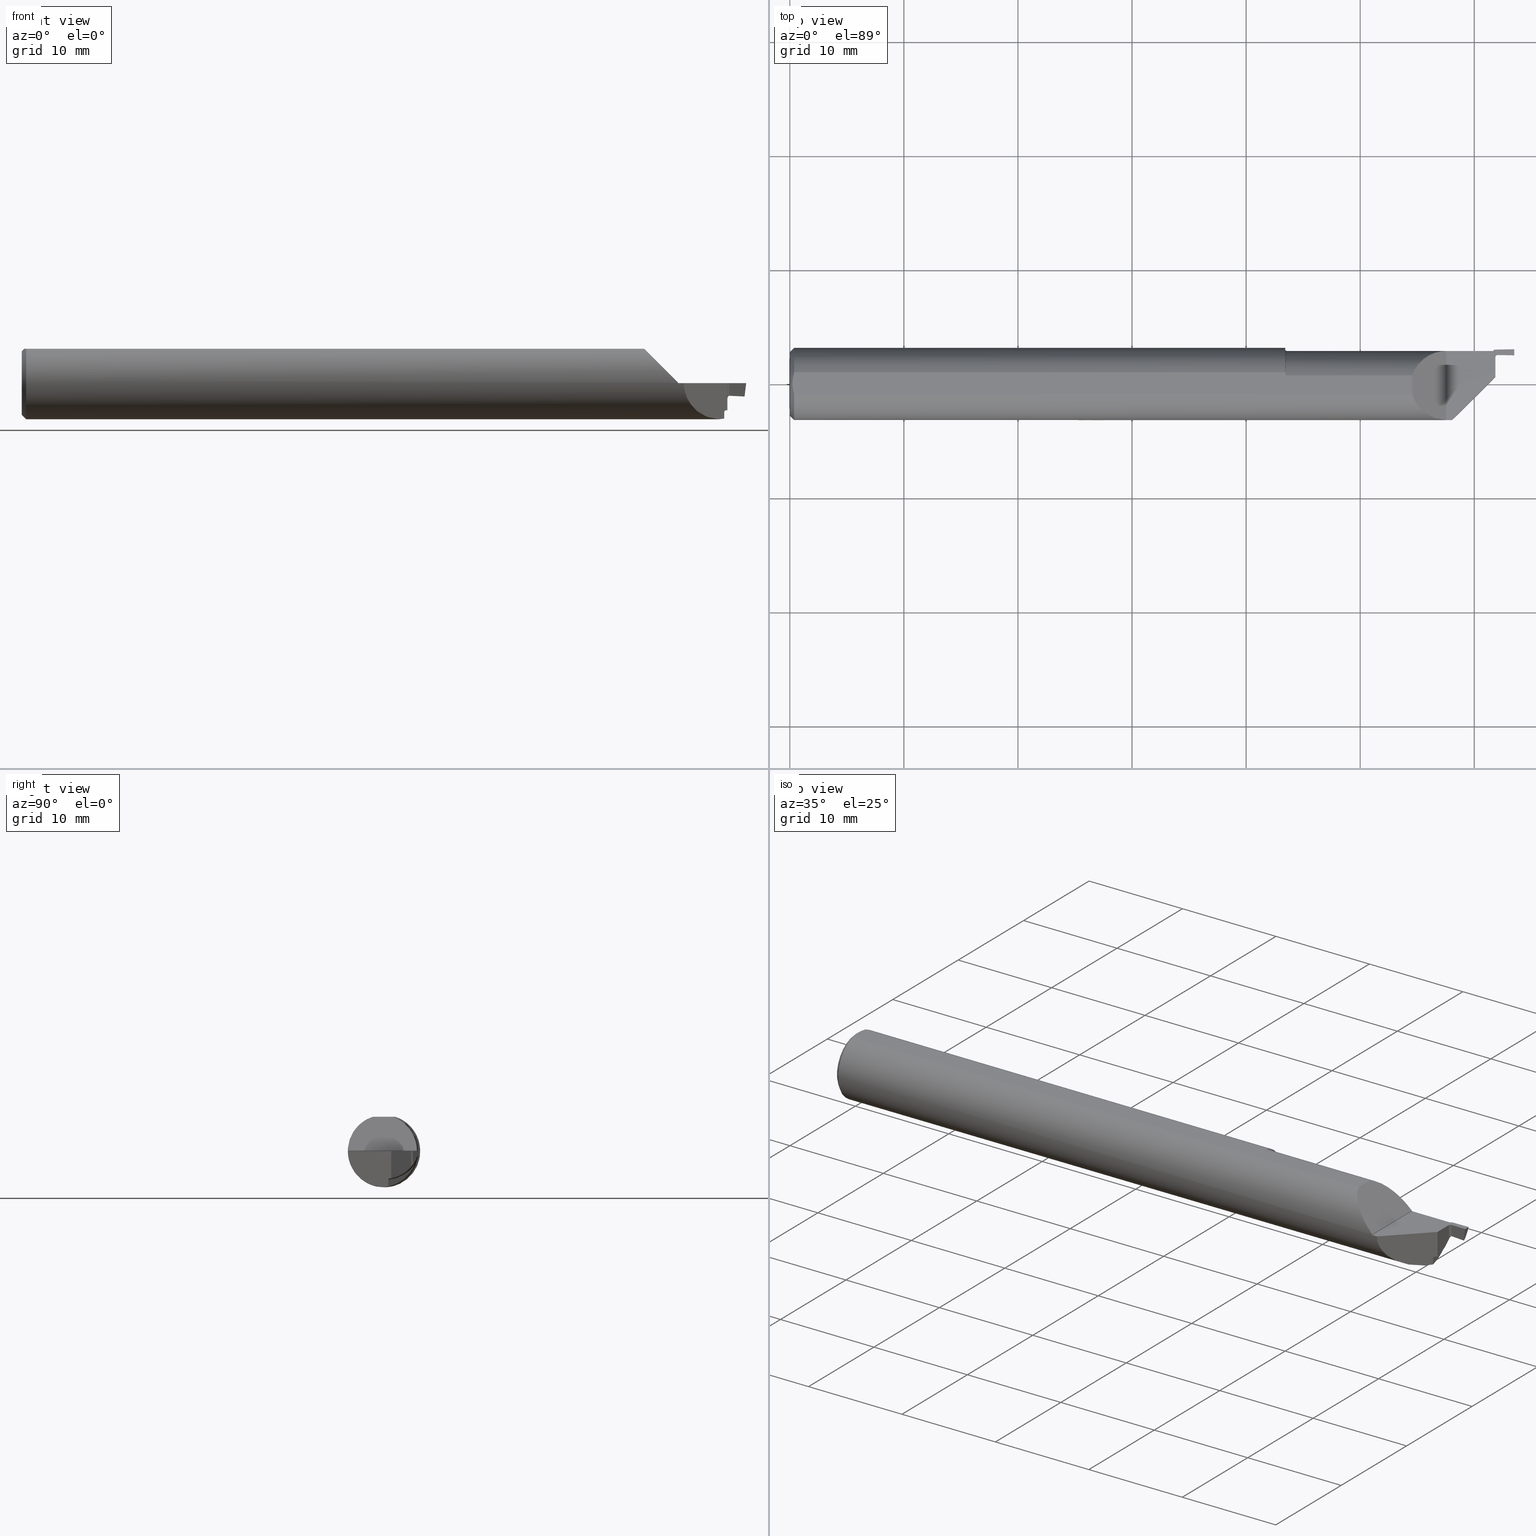
[diagram: canonical four-view strip — front | top / right | iso, engineering-drawing reading convention]
A machine part, canonical four-view strip (front | top / right | iso — engineering-drawing reading convention). The complete STEP part file that produces these views, byte-faithful:
ISO-10303-21;
HEADER;
FILE_DESCRIPTION (( 'STEP AP203' ),
    '1' );
FILE_NAME ('220049-FG250-020.STEP',
    '2024-06-10T22:23:35',
    ( '' ),
    ( '' ),
    'SwSTEP 2.0',
    'SolidWorks 2022',
    '' );
FILE_SCHEMA (( 'CONFIG_CONTROL_DESIGN' ));
ENDSEC;

DATA;
#1 = CARTESIAN_POINT ( 'NONE',  ( 2.497952464162551234, 0.1168680243815791442, -0.01667584118387515496 ) ) ;
#2 = ORIENTED_EDGE ( 'NONE', *, *, #49, .F. ) ;
#3 = DIRECTION ( 'NONE',  ( 1.000000000000000000, 0.000000000000000000, 0.000000000000000000 ) ) ;
#4 = ORIENTED_EDGE ( 'NONE', *, *, #866, .T. ) ;
#5 = CARTESIAN_POINT ( 'NONE',  ( 0.008999999999999641967, 4.252717492586794387E-17, 0.1188499999999999973 ) ) ;
#6 = CC_DESIGN_APPROVAL ( #674, ( #825 ) ) ;
#7 = LINE ( 'NONE', #637, #577 ) ;
#8 = DATE_AND_TIME ( #891, #495 ) ;
#9 = VECTOR ( 'NONE', #235, 39.37007874015748854 ) ;
#10 = ORIENTED_EDGE ( 'NONE', *, *, #96, .T. ) ;
#11 = DIRECTION ( 'NONE',  ( 1.000000000000000000, 0.000000000000000000, 0.000000000000000000 ) ) ;
#12 = CARTESIAN_POINT ( 'NONE',  ( 1.711914333455625048, 0.007945130463939900287, -0.1246218459314067384 ) ) ;
#13 = APPROVAL_STATUS ( 'not_yet_approved' ) ;
#14 = ORIENTED_EDGE ( 'NONE', *, *, #333, .T. ) ;
#15 = EDGE_CURVE ( 'NONE', #649, #421, #300, .T. ) ;
#16 = EDGE_CURVE ( 'NONE', #18, #705, #472, .T. ) ;
#17 = CARTESIAN_POINT ( 'NONE',  ( 2.430000000000000160, -0.01115076164021940389, 0.000000000000000000 ) ) ;
#18 = VERTEX_POINT ( 'NONE', #173 ) ;
#19 = LINE ( 'NONE', #764, #166 ) ;
#20 = DIRECTION ( 'NONE',  ( 0.000000000000000000, 0.000000000000000000, -1.000000000000000000 ) ) ;
#21 = DIRECTION ( 'NONE',  ( -1.000000000000000000, 0.000000000000000000, 0.000000000000000000 ) ) ;
#22 = ADVANCED_FACE ( 'NONE', ( #452 ), #746, .F. ) ;
#23 = CARTESIAN_POINT ( 'NONE',  ( 1.714473844127618607, 0.02757490814094754397, 0.1188499999999999973 ) ) ;
#24 = ORIENTED_EDGE ( 'NONE', *, *, #277, .F. ) ;
#25 = CARTESIAN_POINT ( 'NONE',  ( 0.01499999999997804305, -0.03823872382811423221, 0.1188499999999999973 ) ) ;
#26 = AXIS2_PLACEMENT_3D ( 'NONE', #533, #804, #97 ) ;
#27 = ORIENTED_EDGE ( 'NONE', *, *, #829, .F. ) ;
#28 = CC_DESIGN_DATE_AND_TIME_ASSIGNMENT ( #553, #60, ( #440 ) ) ;
#29 = CARTESIAN_POINT ( 'NONE',  ( 0.000000000000000000, -0.03823872382807772669, 0.1188499999999999973 ) ) ;
#30 = ORIENTED_EDGE ( 'NONE', *, *, #515, .T. ) ;
#31 = DIRECTION ( 'NONE',  ( -0.7071067811865483499, -0.7071067811865467956, 0.000000000000000000 ) ) ;
#32 = EDGE_CURVE ( 'NONE', #432, #522, #109, .T. ) ;
#33 = LINE ( 'NONE', #796, #811 ) ;
#34 = CARTESIAN_POINT ( 'NONE',  ( 2.435011370330728120, 0.09233350000066557761, -0.05535720779349547621 ) ) ;
#35 = DIRECTION ( 'NONE',  ( -1.096770570373022289E-16, 1.000000000000000000, 0.000000000000000000 ) ) ;
#36 = EDGE_LOOP ( 'NONE', ( #343, #824, #200, #486, #128 ) ) ;
#37 = CARTESIAN_POINT ( 'NONE',  ( 2.435005047996914307, 0.09212711062856816790, -0.008282853067707679484 ) ) ;
#38 = CARTESIAN_POINT ( 'NONE',  ( 2.443166326289849533, 0.1013668229597832482, -0.04367935784237119562 ) ) ;
#39 = ORIENTED_EDGE ( 'NONE', *, *, #298, .F. ) ;
#40 = CARTESIAN_POINT ( 'NONE',  ( 2.435010363486163953, 0.09227666809314664931, -0.01700461284446206159 ) ) ;
#41 = CARTESIAN_POINT ( 'NONE',  ( 0.009000000000000025341, 0.006491061014450950212, 0.1188499999999999973 ) ) ;
#42 = AXIS2_PLACEMENT_3D ( 'NONE', #451, #82, #513 ) ;
#43 = CIRCLE ( 'NONE', #150, 0.1098499999999999199 ) ;
#44 = CARTESIAN_POINT ( 'NONE',  ( 2.435000000000000053, 0.02514999999999998487, -0.09330059111347745182 ) ) ;
#45 = PLANE ( 'NONE',  #426 ) ;
#46 = DIRECTION ( 'NONE',  ( 0.000000000000000000, -1.000000000000000000, 0.000000000000000000 ) ) ;
#47 = CARTESIAN_POINT ( 'NONE',  ( 2.285000000000000142, -0.1248500000000000165, -0.07133877615075744083 ) ) ;
#48 = CARTESIAN_POINT ( 'NONE',  ( 2.435000000000000497, 0.05124862516905655252, -0.08876408224075321707 ) ) ;
#49 = EDGE_CURVE ( 'NONE', #624, #559, #191, .T. ) ;
#50 = LINE ( 'NONE', #809, #458 ) ;
#51 = CARTESIAN_POINT ( 'NONE',  ( 2.441768981591912802, 0.1013887798408705937, -0.04360967178765962071 ) ) ;
#52 = LINE ( 'NONE', #328, #279 ) ;
#53 = CARTESIAN_POINT ( 'NONE',  ( 2.265000000000000124, 0.2248499999999999943, 0.000000000000000000 ) ) ;
#54 = AXIS2_PLACEMENT_3D ( 'NONE', #88, #439, #382 ) ;
#55 = CONICAL_SURFACE ( 'NONE', #63, 0.1098499999999999199, 0.7853981633974431720 ) ;
#56 = PLANE ( 'NONE',  #326 ) ;
#57 = EDGE_CURVE ( 'NONE', #338, #90, #780, .T. ) ;
#58 = DIRECTION ( 'NONE',  ( 0.000000000000000000, 0.000000000000000000, 1.000000000000000000 ) ) ;
#59 = EDGE_CURVE ( 'NONE', #776, #156, #802, .T. ) ;
#60 = DATE_TIME_ROLE ( 'creation_date' ) ;
#61 = VERTEX_POINT ( 'NONE', #151 ) ;
#62 = ORIENTED_EDGE ( 'NONE', *, *, #859, .T. ) ;
#63 = AXIS2_PLACEMENT_3D ( 'NONE', #673, #3, #64 ) ;
#64 = DIRECTION ( 'NONE',  ( 0.000000000000000000, 0.000000000000000000, -1.000000000000000000 ) ) ;
#65 = CALENDAR_DATE ( 2024, 10, 6 ) ;
#66 = ORIENTED_EDGE ( 'NONE', *, *, #131, .T. ) ;
#67 = CARTESIAN_POINT ( 'NONE',  ( 2.494331843814869387, 0.1005604843697845419, -0.04616342757957398596 ) ) ;
#68 = FACE_OUTER_BOUND ( 'NONE', #157, .T. ) ;
#69 = VERTEX_POINT ( 'NONE', #295 ) ;
#70 = CARTESIAN_POINT ( 'NONE',  ( 1.713227278469431347, 0.02855906026573752990, 0.1188499999999999973 ) ) ;
#71 = CARTESIAN_POINT ( 'NONE',  ( 1.710159383103249331, 0.03488974151477051283, -0.1202838750561012054 ) ) ;
#72 = COORDINATED_UNIVERSAL_TIME_OFFSET ( 8, 0, .BEHIND. ) ;
#73 = EDGE_LOOP ( 'NONE', ( #773, #30 ) ) ;
#74 = CARTESIAN_POINT ( 'NONE',  ( 2.435033567027992785, 0.09257504156174943544, -0.05507744270109412449 ) ) ;
#75 = VECTOR ( 'NONE', #174, 39.37007874015748143 ) ;
#76 = CARTESIAN_POINT ( 'NONE',  ( 2.435003195454503278, 0.09208853592543372879, -0.001601214643695494152 ) ) ;
#77 = PERSON_AND_ORGANIZATION ( #535, #92 ) ;
#78 = EDGE_LOOP ( 'NONE', ( #840, #162, #246 ) ) ;
#79 = CYLINDRICAL_SURFACE ( 'NONE', #547, 0.008000000000000024453 ) ;
#80 = ORIENTED_EDGE ( 'NONE', *, *, #669, .F. ) ;
#81 = CARTESIAN_POINT ( 'NONE',  ( 0.008999999999999641967, 4.252717492586794387E-17, 0.1188499999999999973 ) ) ;
#82 = DIRECTION ( 'NONE',  ( 1.000000000000000000, 0.000000000000000000, 0.000000000000000000 ) ) ;
#83 = EDGE_CURVE ( 'NONE', #595, #564, #229, .T. ) ;
#84 = CARTESIAN_POINT ( 'NONE',  ( 2.435000000000000053, 0.02514999999999998487, -0.09330059111347745182 ) ) ;
#85 = DIRECTION ( 'NONE',  ( -0.000000000000000000, -0.000000000000000000, 1.000000000000000000 ) ) ;
#86 = VERTEX_POINT ( 'NONE', #686 ) ;
#87 = CARTESIAN_POINT ( 'NONE',  ( 0.000000000000000000, 0.000000000000000000, 0.000000000000000000 ) ) ;
#88 = CARTESIAN_POINT ( 'NONE',  ( 2.424999999999999822, -0.01115076164021940389, 0.000000000000000000 ) ) ;
#89 = VERTEX_POINT ( 'NONE', #735 ) ;
#90 = VERTEX_POINT ( 'NONE', #744 ) ;
#91 = CARTESIAN_POINT ( 'NONE',  ( 2.435005047996914307, 0.09212711062856816790, -0.008282853067707679484 ) ) ;
#92 = ORGANIZATION ( 'UNSPECIFIED', 'UNSPECIFIED', '' ) ;
#93 = DIRECTION ( 'NONE',  ( 1.000000000000000000, 0.000000000000000000, -0.000000000000000000 ) ) ;
#94 = CARTESIAN_POINT ( 'NONE',  ( 2.429328227350021852, 0.01947822735002183517, -0.09412922127318186505 ) ) ;
#95 = VERTEX_POINT ( 'NONE', #740 ) ;
#96 = EDGE_CURVE ( 'NONE', #421, #776, #106, .T. ) ;
#97 = DIRECTION ( 'NONE',  ( -1.096770570373022289E-16, 1.000000000000000000, 0.000000000000000000 ) ) ;
#98 = CARTESIAN_POINT ( 'NONE',  ( 2.265000000000000124, -0.1248362927998104277, 0.001850000000000442436 ) ) ;
#99 = ORIENTED_EDGE ( 'NONE', *, *, #597, .F. ) ;
#100 = CARTESIAN_POINT ( 'NONE',  ( 1.715000000000000080, -0.01115076164021949583, 0.000000000000000000 ) ) ;
#101 = CC_DESIGN_PERSON_AND_ORGANIZATION_ASSIGNMENT ( #197, #827, ( #314 ) ) ;
#102 = CARTESIAN_POINT ( 'NONE',  ( 2.424575507344042258, 0.005267931641562449870, 0.02000000000000000736 ) ) ;
#103 = CARTESIAN_POINT ( 'NONE',  ( 2.429328227350021852, 0.01947822735002183517, -0.09412922127318186505 ) ) ;
#104 = ORIENTED_EDGE ( 'NONE', *, *, #815, .T. ) ;
#105 = CARTESIAN_POINT ( 'NONE',  ( 2.435001483111417730, 0.09199268037058523639, -0.0002790132549054104663 ) ) ;
#106 = B_SPLINE_CURVE_WITH_KNOTS ( 'NONE', 3,
 ( #260, #890, #668, #742, #540, #262 ),
 .UNSPECIFIED., .F., .F.,
 ( 4, 2, 4 ),
 ( 0.000000000000000000, 0.0001221975287423067696, 0.0002443950574846135392 ),
 .UNSPECIFIED. ) ;
#107 = ADVANCED_FACE ( 'NONE', ( #68 ), #334, .T. ) ;
#108 = LINE ( 'NONE', #819, #558 ) ;
#109 = CIRCLE ( 'NONE', #847, 0.008000000000000024453 ) ;
#110 = CARTESIAN_POINT ( 'NONE',  ( 2.435000000000000053, 0.09184295843633712153, -0.05591779372944149368 ) ) ;
#111 = DIRECTION ( 'NONE',  ( -0.9998476951563914916, -0.01745240643726935284, -0.000000000000000000 ) ) ;
#112 = CARTESIAN_POINT ( 'NONE',  ( 2.501506277050174365, 0.1248500000000000304, 0.01226764211312855388 ) ) ;
#113 = CARTESIAN_POINT ( 'NONE',  ( 2.435621534722110404, 0.09717085461606196628, -0.04944569338805797354 ) ) ;
#114 = LENGTH_MEASURE_WITH_UNIT ( LENGTH_MEASURE( 0.02539999999999999897 ), #883 );
#115 = CARTESIAN_POINT ( 'NONE',  ( 2.435000000000000053, 0.02514999999999998487, -0.09330059111347745182 ) ) ;
#116 = EDGE_CURVE ( 'NONE', #86, #705, #354, .T. ) ;
#117 = CARTESIAN_POINT ( 'NONE',  ( 1.710170960735225121, 0.03823872382821605354, 0.1188499999999555051 ) ) ;
#118 = DIRECTION ( 'NONE',  ( 1.000000000000000000, 0.000000000000000000, 0.000000000000000000 ) ) ;
#119 = LOCAL_TIME ( 15, 23, 35.00000000000000000, #677 ) ;
#120 = AXIS2_PLACEMENT_3D ( 'NONE', #623, #496, #772 ) ;
#121 = AXIS2_PLACEMENT_3D ( 'NONE', #456, #389, #793 ) ;
#122 = ADVANCED_FACE ( 'NONE', ( #336 ), #55, .T. ) ;
#123 = DIRECTION ( 'NONE',  ( 0.000000000000000000, -1.000000000000000000, 0.000000000000000000 ) ) ;
#124 = APPLICATION_CONTEXT ( 'configuration controlled 3d designs of mechanical parts and assemblies' ) ;
#125 = CARTESIAN_POINT ( 'NONE',  ( 0.01310472768618554072, 0.03205063163538453969, 0.1188499999999999696 ) ) ;
#126 = APPROVAL ( #13, 'UNSPECIFIED' ) ;
#127 = APPLICATION_PROTOCOL_DEFINITION ( 'international standard', 'config_control_design', 1994, #124 ) ;
#128 = ORIENTED_EDGE ( 'NONE', *, *, #541, .F. ) ;
#129 = ORIENTED_EDGE ( 'NONE', *, *, #399, .F. ) ;
#130 = PERSON_AND_ORGANIZATION_ROLE ( 'creator' ) ;
#131 = EDGE_CURVE ( 'NONE', #90, #61, #810, .T. ) ;
#132 = ORIENTED_EDGE ( 'NONE', *, *, #666, .T. ) ;
#133 = CC_DESIGN_APPROVAL ( #548, ( #314 ) ) ;
#134 = CIRCLE ( 'NONE', #482, 0.1300000000000000044 ) ;
#135 = CARTESIAN_POINT ( 'NONE',  ( 2.422843776397741067, 0.1044787311100553451, -0.04748494926094129487 ) ) ;
#136 = VERTEX_POINT ( 'NONE', #602 ) ;
#137 = CARTESIAN_POINT ( 'NONE',  ( 1.715000000000000080, -0.01115076164021948195, 0.000000000000000000 ) ) ;
#138 = MECHANICAL_CONTEXT ( 'NONE', #390, 'mechanical' ) ;
#139 = ORIENTED_EDGE ( 'NONE', *, *, #750, .T. ) ;
#140 = CARTESIAN_POINT ( 'NONE',  ( 2.443000000000000060, 0.09184295843633712153, -0.1248500000000000026 ) ) ;
#141 = EDGE_CURVE ( 'NONE', #432, #473, #147, .T. ) ;
#142 = CARTESIAN_POINT ( 'NONE',  ( 2.430000000000000160, 0.1138492383597806412, 0.000000000000000000 ) ) ;
#143 = ORIENTED_EDGE ( 'NONE', *, *, #285, .T. ) ;
#144 = LINE ( 'NONE', #831, #518 ) ;
#145 = ORIENTED_EDGE ( 'NONE', *, *, #733, .T. ) ;
#146 = CIRCLE ( 'NONE', #54, 0.1250000000000001110 ) ;
#147 = B_SPLINE_CURVE_WITH_KNOTS ( 'NONE', 3,
 ( #616, #270, #342, #552, #879, #608 ),
 .UNSPECIFIED., .F., .F.,
 ( 4, 2, 4 ),
 ( 0.000000000000000000, 0.5000000000000000000, 1.000000000000000000 ),
 .UNSPECIFIED. ) ;
#148 = CARTESIAN_POINT ( 'NONE',  ( 2.435002345047223127, 0.09203786446078540684, -0.002944330584218991971 ) ) ;
#149 = EDGE_CURVE ( 'NONE', #89, #436, #108, .T. ) ;
#150 = AXIS2_PLACEMENT_3D ( 'NONE', #566, #762, #223 ) ;
#151 = CARTESIAN_POINT ( 'NONE',  ( 2.265000000000000124, 0.1138355476100341018, 0.001850000000000401670 ) ) ;
#152 = CARTESIAN_POINT ( 'NONE',  ( 1.713990696821216186, 0.02785570178468178143, 0.1188499999999999973 ) ) ;
#153 = ORIENTED_EDGE ( 'NONE', *, *, #690, .F. ) ;
#154 = CARTESIAN_POINT ( 'NONE',  ( 1.715000000000000080, -0.003894890230802504089, -0.1247892316271320273 ) ) ;
#155 = FACE_OUTER_BOUND ( 'NONE', #224, .T. ) ;
#156 = VERTEX_POINT ( 'NONE', #115 ) ;
#157 = EDGE_LOOP ( 'NONE', ( #208, #478, #777, #332, #837 ) ) ;
#158 = CARTESIAN_POINT ( 'NONE',  ( 2.422940269560077020, 0.1069406022796521444, -0.04112310530747520509 ) ) ;
#159 = PLANE ( 'NONE',  #701 ) ;
#160 = CARTESIAN_POINT ( 'NONE',  ( 0.000000000000000000, 1.345274508863366615E-17, 0.1098499999999999199 ) ) ;
#161 = CARTESIAN_POINT ( 'NONE',  ( 2.422843776397741067, 0.1044787311100553451, -0.04748494926094129487 ) ) ;
#162 = ORIENTED_EDGE ( 'NONE', *, *, #492, .T. ) ;
#163 = LINE ( 'NONE', #309, #410 ) ;
#164 = TOROIDAL_SURFACE ( 'NONE', #368, 0.1300000000000000044, 0.005000000000000040870 ) ;
#165 = DIRECTION ( 'NONE',  ( -1.000000000000000000, -0.000000000000000000, -0.000000000000000000 ) ) ;
#166 = VECTOR ( 'NONE', #226, 39.37007874015748143 ) ;
#167 = CIRCLE ( 'NONE', #282, 0.004999999999999810152 ) ;
#168 = DIRECTION ( 'NONE',  ( -0.9998476951563914916, -0.01745240643726934937, 0.000000000000000000 ) ) ;
#169 = B_SPLINE_CURVE_WITH_KNOTS ( 'NONE', 3,
 ( #571, #23, #152, #70, #704, #759, #431, #708, #619, #420 ),
 .UNSPECIFIED., .F., .F.,
 ( 4, 2, 2, 2, 4 ),
 ( 1.511091346206754193E-05, 5.470638640597475020E-05, 9.430185934988194831E-05, 0.0001734928052377072679, 0.0003318746970133577986 ),
 .UNSPECIFIED. ) ;
#170 = B_SPLINE_CURVE_WITH_KNOTS ( 'NONE', 3,
 ( #91, #697, #573, #148, #76, #774 ),
 .UNSPECIFIED., .F., .F.,
 ( 4, 2, 4 ),
 ( 0.02300346262634217487, 0.02310447887483744328, 0.02320549512333271169 ),
 .UNSPECIFIED. ) ;
#171 = DIRECTION ( 'NONE',  ( -1.000000000000000000, -0.000000000000000000, -0.000000000000000000 ) ) ;
#172 = CARTESIAN_POINT ( 'NONE',  ( 2.443379501196029757, 0.1135796051554930214, -0.3934609555193290253 ) ) ;
#173 = CARTESIAN_POINT ( 'NONE',  ( 2.424999999999999822, 0.1106539908770247521, -0.02808206303341891780 ) ) ;
#174 = DIRECTION ( 'NONE',  ( 0.000000000000000000, 0.000000000000000000, -1.000000000000000000 ) ) ;
#175 = FACE_OUTER_BOUND ( 'NONE', #201, .T. ) ;
#176 = ADVANCED_FACE ( 'NONE', ( #395 ), #620, .T. ) ;
#177 = CARTESIAN_POINT ( 'NONE',  ( 2.443166326289849533, 0.1013668229597832482, -0.04367935784237119562 ) ) ;
#178 = CARTESIAN_POINT ( 'NONE',  ( 2.423124072744776036, 0.08842056414315845048, -0.08658781721764803596 ) ) ;
#179 = CARTESIAN_POINT ( 'NONE',  ( 2.435000000000000053, 0.09184295843633712153, -0.05591779372944149368 ) ) ;
#180 = CARTESIAN_POINT ( 'NONE',  ( 1.709999999999999964, 0.05327609239522881901, -0.1129122689484851477 ) ) ;
#181 = EDGE_CURVE ( 'NONE', #709, #649, #434, .T. ) ;
#182 = CARTESIAN_POINT ( 'NONE',  ( 2.429995071809771368, 0.1186272977928927580, -1.872330685094113637E-13 ) ) ;
#183 = AXIS2_PLACEMENT_3D ( 'NONE', #862, #254, #659 ) ;
#184 = LINE ( 'NONE', #795, #387 ) ;
#185 = DIRECTION ( 'NONE',  ( -0.000000000000000000, 0.000000000000000000, 1.000000000000000000 ) ) ;
#186 = FACE_OUTER_BOUND ( 'NONE', #423, .T. ) ;
#187 = FACE_OUTER_BOUND ( 'NONE', #374, .T. ) ;
#188 = CARTESIAN_POINT ( 'NONE',  ( 2.427696740432799150, 0.1129460502388594662, -0.02056699002085431507 ) ) ;
#189 = EDGE_CURVE ( 'NONE', #69, #703, #726, .T. ) ;
#190 = AXIS2_PLACEMENT_3D ( 'NONE', #112, #264, #392 ) ;
#191 = B_SPLINE_CURVE_WITH_KNOTS ( 'NONE', 3,
 ( #317, #252, #34, #365 ),
 .UNSPECIFIED., .F., .F.,
 ( 4, 4 ),
 ( 0.000000000000000000, 2.804761068221259360E-05 ),
 .UNSPECIFIED. ) ;
#192 = B_SPLINE_CURVE_WITH_KNOTS ( 'NONE', 3,
 ( #725, #125, #305, #507, #41, #501 ),
 .UNSPECIFIED., .F., .F.,
 ( 4, 2, 4 ),
 ( 0.002939763849513850943, 0.003427521671950178872, 0.003915279494386507235 ),
 .UNSPECIFIED. ) ;
#193 = CIRCLE ( 'NONE', #537, 0.1300000000000000044 ) ;
#194 = CYLINDRICAL_SURFACE ( 'NONE', #786, 0.1250000000000000555 ) ;
#195 = DIRECTION ( 'NONE',  ( -1.000000000000000000, -1.096770570373022289E-16, 0.000000000000000000 ) ) ;
#196 = ORIENTED_EDGE ( 'NONE', *, *, #583, .F. ) ;
#197 = PERSON_AND_ORGANIZATION ( #535, #92 ) ;
#198 = EDGE_CURVE ( 'NONE', #306, #687, #543, .T. ) ;
#199 = PRODUCT ( '220049-FG250-020', '220049-FG250-020', '', ( #138 ) ) ;
#200 = ORIENTED_EDGE ( 'NONE', *, *, #470, .T. ) ;
#201 = EDGE_LOOP ( 'NONE', ( #286, #585, #240, #274 ) ) ;
#202 = DIRECTION ( 'NONE',  ( 1.000000000000000000, 0.000000000000000000, -0.000000000000000000 ) ) ;
#203 = DATE_TIME_ROLE ( 'classification_date' ) ;
#204 = ORIENTED_EDGE ( 'NONE', *, *, #615, .T. ) ;
#205 = ORIENTED_EDGE ( 'NONE', *, *, #49, .T. ) ;
#206 = AXIS2_PLACEMENT_3D ( 'NONE', #655, #243, #791 ) ;
#207 = LINE ( 'NONE', #415, #398 ) ;
#208 = ORIENTED_EDGE ( 'NONE', *, *, #515, .F. ) ;
#209 = DIRECTION ( 'NONE',  ( 0.000000000000000000, 0.000000000000000000, -1.000000000000000000 ) ) ;
#210 = PERSON_AND_ORGANIZATION ( #535, #92 ) ;
#211 = B_SPLINE_CURVE_WITH_KNOTS ( 'NONE', 3,
 ( #353, #845, #158, #625, #438, #710 ),
 .UNSPECIFIED., .F., .F.,
 ( 4, 2, 4 ),
 ( 0.0005002341761980562624, 0.0007616272360342175255, 0.001023020295870378897 ),
 .UNSPECIFIED. ) ;
#212 = EDGE_LOOP ( 'NONE', ( #378, #14, #818, #297, #303, #216, #204, #444, #555, #416, #104, #569 ) ) ;
#213 = PLANE ( 'NONE',  #672 ) ;
#214 = ORIENTED_EDGE ( 'NONE', *, *, #607, .F. ) ;
#215 = FACE_OUTER_BOUND ( 'NONE', #73, .T. ) ;
#216 = ORIENTED_EDGE ( 'NONE', *, *, #466, .T. ) ;
#217 = ADVANCED_FACE ( 'NONE', ( #186 ), #232, .T. ) ;
#218 = DIMENSIONAL_EXPONENTS ( 1.000000000000000000, 0.000000000000000000, 0.000000000000000000, 0.000000000000000000, 0.000000000000000000, 0.000000000000000000, 0.000000000000000000 ) ;
#219 = CARTESIAN_POINT ( 'NONE',  ( 0.000000000000000000, 1.437123018799418518E-17, 0.1098499999999999199 ) ) ;
#220 = ORIENTED_EDGE ( 'NONE', *, *, #429, .F. ) ;
#221 = CARTESIAN_POINT ( 'NONE',  ( 1.714001066425367981, -0.002780069005519711887, -0.1248193845498108134 ) ) ;
#222 = ORIENTED_EDGE ( 'NONE', *, *, #59, .T. ) ;
#223 = DIRECTION ( 'NONE',  ( 0.000000000000000000, 0.000000000000000000, -1.000000000000000000 ) ) ;
#224 = EDGE_LOOP ( 'NONE', ( #355, #484, #578, #551, #132, #269, #861 ) ) ;
#225 = LOCAL_TIME ( 15, 23, 35.00000000000000000, #72 ) ;
#226 = DIRECTION ( 'NONE',  ( -1.000000000000000000, -1.096770570373022412E-16, 0.000000000000000000 ) ) ;
#227 = AXIS2_PLACEMENT_3D ( 'NONE', #691, #505, #851 ) ;
#228 = CARTESIAN_POINT ( 'NONE',  ( 2.424413256839188957, 0.01456325683918885047, -0.1223265680612378864 ) ) ;
#229 = LINE ( 'NONE', #160, #867 ) ;
#230 = DIRECTION ( 'NONE',  ( -0.000000000000000000, 0.000000000000000000, -1.000000000000000000 ) ) ;
#231 = ORIENTED_EDGE ( 'NONE', *, *, #583, .T. ) ;
#232 = PLANE ( 'NONE',  #227 ) ;
#233 = DIRECTION ( 'NONE',  ( -0.0006094513490877364768, 0.000000000000000000, 0.9999998142845092364 ) ) ;
#234 = CARTESIAN_POINT ( 'NONE',  ( 2.433116485792774508, 0.02326648579277442591, -0.09362227214758897520 ) ) ;
#235 = DIRECTION ( 'NONE',  ( -0.9998476951563912696, 0.01745240643727479640, -0.000000000000000000 ) ) ;
#236 = ORIENTED_EDGE ( 'NONE', *, *, #181, .T. ) ;
#237 = CARTESIAN_POINT ( 'NONE',  ( 2.430000000000000160, 0.1138492383597806412, 0.000000000000000000 ) ) ;
#238 = DIRECTION ( 'NONE',  ( 0.000000000000000000, 0.000000000000000000, -1.000000000000000000 ) ) ;
#239 = ORIENTED_EDGE ( 'NONE', *, *, #570, .F. ) ;
#240 = ORIENTED_EDGE ( 'NONE', *, *, #311, .F. ) ;
#241 = LINE ( 'NONE', #237, #886 ) ;
#242 =( GEOMETRIC_REPRESENTATION_CONTEXT ( 3 ) GLOBAL_UNCERTAINTY_ASSIGNED_CONTEXT ( ( #611 ) ) GLOBAL_UNIT_ASSIGNED_CONTEXT ( ( #463, #675, #530 ) ) REPRESENTATION_CONTEXT ( 'NONE', 'WORKASPACE' ) );
#243 = DIRECTION ( 'NONE',  ( -1.000000000000000000, -0.000000000000000000, -0.000000000000000000 ) ) ;
#244 = AXIS2_PLACEMENT_3D ( 'NONE', #87, #487, #209 ) ;
#245 = AXIS2_PLACEMENT_3D ( 'NONE', #645, #860, #247 ) ;
#246 = ORIENTED_EDGE ( 'NONE', *, *, #348, .F. ) ;
#247 = DIRECTION ( 'NONE',  ( 0.000000000000000000, 1.000000000000000000, 0.000000000000000000 ) ) ;
#248 = EDGE_CURVE ( 'NONE', #687, #432, #778, .T. ) ;
#249 = EDGE_CURVE ( 'NONE', #649, #18, #211, .T. ) ;
#250 = DIRECTION ( 'NONE',  ( 1.000000000000000000, 1.096770570373022289E-16, -0.000000000000000000 ) ) ;
#251 = CARTESIAN_POINT ( 'NONE',  ( 0.000000000000000000, -0.2248499999999999943, 0.1188499999999999973 ) ) ;
#252 = CARTESIAN_POINT ( 'NONE',  ( 2.435000000000000053, 0.09208950579932533020, -0.05563731277738370035 ) ) ;
#253 = EDGE_CURVE ( 'NONE', #90, #498, #19, .T. ) ;
#254 = DIRECTION ( 'NONE',  ( -1.000000000000000000, -0.000000000000000000, 0.000000000000000000 ) ) ;
#255 = CARTESIAN_POINT ( 'NONE',  ( 2.440431928929637007, 0.1010424816905596684, -0.04409940793005062004 ) ) ;
#256 = CC_DESIGN_PERSON_AND_ORGANIZATION_ASSIGNMENT ( #698, #130, ( #440 ) ) ;
#257 = FACE_OUTER_BOUND ( 'NONE', #694, .T. ) ;
#258 = AXIS2_PLACEMENT_3D ( 'NONE', #846, #779, #20 ) ;
#259 = EDGE_CURVE ( 'NONE', #721, #724, #760, .T. ) ;
#260 = CARTESIAN_POINT ( 'NONE',  ( 2.424413256839188957, 0.01456325683918885047, -0.09963933552241104052 ) ) ;
#261 = CARTESIAN_POINT ( 'NONE',  ( 2.435000000000000053, 0.09184295843633712153, -0.1248500000000000026 ) ) ;
#262 = CARTESIAN_POINT ( 'NONE',  ( 2.429328227350021852, 0.01947822735002183517, -0.09412922127318186505 ) ) ;
#263 = APPLICATION_PROTOCOL_DEFINITION ( 'international standard', 'config_control_design', 1994, #390 ) ;
#264 = DIRECTION ( 'NONE',  ( -0.9925461516413219831, 0.000000000000000000, 0.1218693434051483226 ) ) ;
#265 = VECTOR ( 'NONE', #734, 39.37007874015748854 ) ;
#266 = AXIS2_PLACEMENT_3D ( 'NONE', #137, #635, #425 ) ;
#267 = ADVANCED_FACE ( 'NONE', ( #215 ), #499, .F. ) ;
#268 = PERSON_AND_ORGANIZATION ( #535, #92 ) ;
#269 = ORIENTED_EDGE ( 'NONE', *, *, #318, .T. ) ;
#270 = CARTESIAN_POINT ( 'NONE',  ( 2.441046502187421030, 0.09987827549184397080, 2.082619332480753018E-17 ) ) ;
#271 = APPROVAL_DATE_TIME ( #8, #674 ) ;
#272 = ORIENTED_EDGE ( 'NONE', *, *, #325, .F. ) ;
#273 = CARTESIAN_POINT ( 'NONE',  ( 2.500000000000000000, 0.1198492383597805910, 6.722907171908147379E-16 ) ) ;
#274 = ORIENTED_EDGE ( 'NONE', *, *, #325, .T. ) ;
#275 = PRODUCT_RELATED_PRODUCT_CATEGORY ( 'detail', '', ( #199 ) ) ;
#276 = CARTESIAN_POINT ( 'NONE',  ( 2.435033023504077576, 0.09333784532905693709, -0.05418561792336148292 ) ) ;
#277 = EDGE_CURVE ( 'NONE', #559, #306, #745, .T. ) ;
#278 = ORIENTED_EDGE ( 'NONE', *, *, #116, .F. ) ;
#279 = VECTOR ( 'NONE', #123, 39.37007874015748143 ) ;
#280 = DIRECTION ( 'NONE',  ( 0.000000000000000000, 1.000000000000000000, 0.000000000000000000 ) ) ;
#281 = CIRCLE ( 'NONE', #120, 0.1150000000000000050 ) ;
#282 = AXIS2_PLACEMENT_3D ( 'NONE', #489, #713, #787 ) ;
#283 = CARTESIAN_POINT ( 'NONE',  ( 1.710866796786096655, 0.02034732159406118027, -0.1232801871523468984 ) ) ;
#284 = PERSON_AND_ORGANIZATION_ROLE ( 'design_owner' ) ;
#285 = EDGE_CURVE ( 'NONE', #400, #473, #170, .T. ) ;
#286 = ORIENTED_EDGE ( 'NONE', *, *, #544, .F. ) ;
#287 = LINE ( 'NONE', #685, #770 ) ;
#288 = ORIENTED_EDGE ( 'NONE', *, *, #253, .F. ) ;
#289 = CARTESIAN_POINT ( 'NONE',  ( 1.712802800785914181, 0.001752548865571712652, -0.1248438142879184920 ) ) ;
#290 = CALENDAR_DATE ( 2024, 10, 6 ) ;
#291 = ORIENTED_EDGE ( 'NONE', *, *, #627, .T. ) ;
#292 = VERTEX_POINT ( 'NONE', #346 ) ;
#293 = CARTESIAN_POINT ( 'NONE',  ( 2.435033567027992785, 0.09257504156174943544, -0.05507744270109412449 ) ) ;
#294 = FACE_OUTER_BOUND ( 'NONE', #78, .T. ) ;
#295 = CARTESIAN_POINT ( 'NONE',  ( 2.405955109769241318, -0.003894890230758989852, -0.1247892316271314583 ) ) ;
#296 = CARTESIAN_POINT ( 'NONE',  ( 2.265000000000000124, -0.2248499999999999943, 0.000000000000000000 ) ) ;
#297 = ORIENTED_EDGE ( 'NONE', *, *, #788, .T. ) ;
#298 = EDGE_CURVE ( 'NONE', #86, #436, #7, .T. ) ;
#299 = CARTESIAN_POINT ( 'NONE',  ( 1.709999999999999964, -0.01115076164021948195, 0.000000000000000000 ) ) ;
#300 = CIRCLE ( 'NONE', #813, 0.1199999999999999956 ) ;
#301 = CARTESIAN_POINT ( 'NONE',  ( 1.715000000000000080, 0.1138492383597805441, 0.000000000000000000 ) ) ;
#302 = ORIENTED_EDGE ( 'NONE', *, *, #466, .F. ) ;
#303 = ORIENTED_EDGE ( 'NONE', *, *, #750, .F. ) ;
#304 = DIRECTION ( 'NONE',  ( 1.000000000000000000, 1.096770570373022412E-16, -0.000000000000000000 ) ) ;
#305 = CARTESIAN_POINT ( 'NONE',  ( 0.01160054105591650300, 0.02577801096047404456, 0.1188500000000000112 ) ) ;
#306 = VERTEX_POINT ( 'NONE', #647 ) ;
#307 = FACE_OUTER_BOUND ( 'NONE', #36, .T. ) ;
#308 = ORIENTED_EDGE ( 'NONE', *, *, #633, .T. ) ;
#309 = CARTESIAN_POINT ( 'NONE',  ( 2.435000000000000053, 0.02514999999999998487, -0.1248500000000000026 ) ) ;
#310 = CARTESIAN_POINT ( 'NONE',  ( 2.494331843814869387, 0.1005604843697845419, -0.04616342757957398596 ) ) ;
#311 = EDGE_CURVE ( 'NONE', #418, #413, #781, .T. ) ;
#312 = ORIENTED_EDGE ( 'NONE', *, *, #500, .F. ) ;
#313 = DIRECTION ( 'NONE',  ( -0.9998476951563914916, -0.01745240643726934937, 0.000000000000000000 ) ) ;
#314 = PRODUCT_DEFINITION_FORMATION_WITH_SPECIFIED_SOURCE ( 'ANY', '', #199, .NOT_KNOWN. ) ;
#315 = DIRECTION ( 'NONE',  ( 0.000000000000000000, -1.000000000000000000, 0.000000000000000000 ) ) ;
#316 = VECTOR ( 'NONE', #706, 39.37007874015748143 ) ;
#317 = CARTESIAN_POINT ( 'NONE',  ( 2.435000000000000053, 0.09184295843633712153, -0.05591779372944149368 ) ) ;
#318 = EDGE_CURVE ( 'NONE', #564, #757, #376, .T. ) ;
#319 = LINE ( 'NONE', #366, #9 ) ;
#320 = CYLINDRICAL_SURFACE ( 'NONE', #560, 0.1150000000000000050 ) ;
#321 = PLANE ( 'NONE',  #545 ) ;
#322 = CARTESIAN_POINT ( 'NONE',  ( 2.284999999999999698, -0.1248500000000000026, 0.000000000000000000 ) ) ;
#323 = DIRECTION ( 'NONE',  ( 0.000000000000000000, 0.000000000000000000, -1.000000000000000000 ) ) ;
#324 = DIRECTION ( 'NONE',  ( 0.000000000000000000, 1.000000000000000000, 0.000000000000000000 ) ) ;
#325 = EDGE_CURVE ( 'NONE', #418, #95, #193, .T. ) ;
#326 = AXIS2_PLACEMENT_3D ( 'NONE', #536, #800, #461 ) ;
#327 = CARTESIAN_POINT ( 'NONE',  ( 2.438319813273861048, 0.1000088240368737919, -0.04555963222627448100 ) ) ;
#328 = CARTESIAN_POINT ( 'NONE',  ( 2.265000000000000124, -0.03823872382811423914, 0.001850000000000401670 ) ) ;
#329 = CARTESIAN_POINT ( 'NONE',  ( 2.265000000000000124, -0.1248500000000000026, 0.000000000000000000 ) ) ;
#330 = ADVANCED_FACE ( 'NONE', ( #652 ), #799, .F. ) ;
#331 = APPROVAL_STATUS ( 'not_yet_approved' ) ;
#332 = ORIENTED_EDGE ( 'NONE', *, *, #753, .F. ) ;
#333 = EDGE_CURVE ( 'NONE', #413, #69, #588, .T. ) ;
#334 = CONICAL_SURFACE ( 'NONE', #351, 0.1098499999999999199, 0.7853981633974431720 ) ;
#335 = EDGE_LOOP ( 'NONE', ( #341, #424, #858, #80, #758 ) ) ;
#336 = FACE_OUTER_BOUND ( 'NONE', #335, .T. ) ;
#337 = DATE_AND_TIME ( #65, #225 ) ;
#338 = VERTEX_POINT ( 'NONE', #741 ) ;
#339 = CC_DESIGN_DATE_AND_TIME_ASSIGNMENT ( #337, #203, ( #825 ) ) ;
#340 = DIRECTION ( 'NONE',  ( 0.000000000000000000, 1.000000000000000000, 0.000000000000000000 ) ) ;
#341 = ORIENTED_EDGE ( 'NONE', *, *, #83, .F. ) ;
#342 = CARTESIAN_POINT ( 'NONE',  ( 2.438951142015538753, 0.09905380824161288955, -3.006366610606045646E-05 ) ) ;
#343 = ORIENTED_EDGE ( 'NONE', *, *, #627, .F. ) ;
#344 = CARTESIAN_POINT ( 'NONE',  ( 1.715000000000000080, 0.1188492383597805208, 0.000000000000000000 ) ) ;
#345 = ORIENTED_EDGE ( 'NONE', *, *, #96, .F. ) ;
#346 = CARTESIAN_POINT ( 'NONE',  ( 0.000000000000000000, 0.000000000000000000, -0.1098499999999999199 ) ) ;
#347 = PERSON_AND_ORGANIZATION ( #535, #92 ) ;
#348 = EDGE_CURVE ( 'NONE', #559, #400, #621, .T. ) ;
#349 = ORIENTED_EDGE ( 'NONE', *, *, #733, .F. ) ;
#350 = DIRECTION ( 'NONE',  ( 1.000000000000000000, 1.096770570373022289E-16, -0.000000000000000000 ) ) ;
#351 = AXIS2_PLACEMENT_3D ( 'NONE', #464, #118, #397 ) ;
#352 = AXIS2_PLACEMENT_3D ( 'NONE', #344, #230, #503 ) ;
#353 = CARTESIAN_POINT ( 'NONE',  ( 2.422843776397741067, 0.1044787311100553451, -0.04748494926094129487 ) ) ;
#354 = B_SPLINE_CURVE_WITH_KNOTS ( 'NONE', 3,
 ( #182, #455, #797, #665, #808, #188 ),
 .UNSPECIFIED., .F., .F.,
 ( 4, 2, 4 ),
 ( 3.239976616178190307E-07, 0.0002741584644200350759, 0.0005479929311784523466 ),
 .UNSPECIFIED. ) ;
#355 = ORIENTED_EDGE ( 'NONE', *, *, #57, .T. ) ;
#356 = FACE_OUTER_BOUND ( 'NONE', #618, .T. ) ;
#357 = ORIENTED_EDGE ( 'NONE', *, *, #570, .T. ) ;
#358 = CARTESIAN_POINT ( 'NONE',  ( 0.009000000000000016667, -0.006484286479682693435, 0.1188499999999999973 ) ) ;
#359 = DIRECTION ( 'NONE',  ( -0.9999998142845093474, 1.800175299997922195E-15, -0.0006094513490877365852 ) ) ;
#360 = CARTESIAN_POINT ( 'NONE',  ( 2.425822103676774422, 0.1112501062713242145, -0.02549643789528602614 ) ) ;
#361 = EDGE_CURVE ( 'NONE', #292, #595, #803, .T. ) ;
#362 = ORIENTED_EDGE ( 'NONE', *, *, #403, .T. ) ;
#363 = CARTESIAN_POINT ( 'NONE',  ( 0.01158016045613162459, -0.02568400999800457205, 0.1188499999999999973 ) ) ;
#364 = DIRECTION ( 'NONE',  ( -1.000000000000000000, -1.096770570373022412E-16, 0.000000000000000000 ) ) ;
#365 = CARTESIAN_POINT ( 'NONE',  ( 2.435033567027992785, 0.09257504156174943544, -0.05507744270109412449 ) ) ;
#366 = CARTESIAN_POINT ( 'NONE',  ( 2.443139619251498473, 0.09984173999758823304, 0.000000000000000000 ) ) ;
#367 = ORIENTED_EDGE ( 'NONE', *, *, #249, .F. ) ;
#368 = AXIS2_PLACEMENT_3D ( 'NONE', #100, #379, #469 ) ;
#369 = CARTESIAN_POINT ( 'NONE',  ( 2.435032749090044746, 0.09371410519115228044, -0.05373535395651541507 ) ) ;
#370 = AXIS2_PLACEMENT_3D ( 'NONE', #53, #202, #806 ) ;
#371 = CARTESIAN_POINT ( 'NONE',  ( 2.435000000000000053, 0.02514999999999998487, 0.000000000000000000 ) ) ;
#372 = ORIENTED_EDGE ( 'NONE', *, *, #181, .F. ) ;
#373 = CARTESIAN_POINT ( 'NONE',  ( 2.424999999999999822, -0.01115076164021941083, 0.000000000000000000 ) ) ;
#374 = EDGE_LOOP ( 'NONE', ( #814, #572, #754, #10, #222, #514, #526 ) ) ;
#375 = CARTESIAN_POINT ( 'NONE',  ( 2.435005047996914307, 0.09212711062856816790, -0.008282853067707679484 ) ) ;
#376 = B_SPLINE_CURVE_WITH_KNOTS ( 'NONE', 3,
 ( #81, #358, #433, #363, #641, #25 ),
 .UNSPECIFIED., .F., .F.,
 ( 4, 2, 4 ),
 ( 0.003915279494386507235, 0.004402528257931054290, 0.004889777021475600477 ),
 .UNSPECIFIED. ) ;
#377 = FACE_OUTER_BOUND ( 'NONE', #411, .T. ) ;
#378 = ORIENTED_EDGE ( 'NONE', *, *, #311, .T. ) ;
#379 = DIRECTION ( 'NONE',  ( 1.000000000000000000, 1.096770570373022289E-16, -0.000000000000000000 ) ) ;
#380 = CARTESIAN_POINT ( 'NONE',  ( 2.265000000000000124, -0.1248362927998104277, 0.001850000000000442436 ) ) ;
#381 = ADVANCED_FACE ( 'NONE', ( #523 ), #45, .F. ) ;
#382 = DIRECTION ( 'NONE',  ( 0.000000000000000000, 1.000000000000000000, 0.000000000000000000 ) ) ;
#383 = DIRECTION ( 'NONE',  ( 0.000000000000000000, 0.000000000000000000, 1.000000000000000000 ) ) ;
#384 = DIRECTION ( 'NONE',  ( 0.000000000000000000, 1.000000000000000000, 0.000000000000000000 ) ) ;
#385 = TOROIDAL_SURFACE ( 'NONE', #612, 0.1300000000000000044, 0.004999999999999895153 ) ;
#386 = CARTESIAN_POINT ( 'NONE',  ( 1.710051374558060777, 0.04338063434112023053, 0.1171956449637627240 ) ) ;
#387 = VECTOR ( 'NONE', #31, 39.37007874015748143 ) ;
#388 = CARTESIAN_POINT ( 'NONE',  ( 2.405955109769241318, -0.003894890230758989852, -0.1247892316271314583 ) ) ;
#389 = DIRECTION ( 'NONE',  ( 1.000000000000000000, 1.096770570373022289E-16, -0.000000000000000000 ) ) ;
#390 = APPLICATION_CONTEXT ( 'configuration controlled 3d designs of mechanical parts and assemblies' ) ;
#391 = DIRECTION ( 'NONE',  ( 0.01745240643726934937, -0.9998476951563914916, 0.000000000000000000 ) ) ;
#392 = DIRECTION ( 'NONE',  ( 0.1218693434051483088, 0.000000000000000000, 0.9925461516413218721 ) ) ;
#393 = CARTESIAN_POINT ( 'NONE',  ( 2.443166326289849533, 0.1013668229597832482, -0.04367935784237119562 ) ) ;
#394 = CARTESIAN_POINT ( 'NONE',  ( 2.435019872324628132, 0.09242601758805099599, -0.03260690285916365699 ) ) ;
#395 = FACE_OUTER_BOUND ( 'NONE', #651, .T. ) ;
#396 = CARTESIAN_POINT ( 'NONE',  ( 2.418327507916967711, 0.008477507916967457272, -0.1236058409348846504 ) ) ;
#397 = DIRECTION ( 'NONE',  ( 0.000000000000000000, 0.000000000000000000, -1.000000000000000000 ) ) ;
#398 = VECTOR ( 'NONE', #340, 39.37007874015748143 ) ;
#399 = EDGE_CURVE ( 'NONE', #156, #751, #163, .T. ) ;
#400 = VERTEX_POINT ( 'NONE', #375 ) ;
#401 = DESIGN_CONTEXT ( 'detailed design', #124, 'design' ) ;
#402 = APPROVAL_DATE_TIME ( #820, #126 ) ;
#403 = EDGE_CURVE ( 'NONE', #871, #724, #241, .T. ) ;
#404 = ORIENTED_EDGE ( 'NONE', *, *, #403, .F. ) ;
#405 = B_SPLINE_CURVE_WITH_KNOTS ( 'NONE', 3,
 ( #117, #386, #739, #459 ),
 .UNSPECIFIED., .F., .F.,
 ( 4, 4 ),
 ( 6.528325437629129570E-07, 0.0004120090794528270405 ),
 .UNSPECIFIED. ) ;
#406 = COORDINATED_UNIVERSAL_TIME_OFFSET ( 8, 0, .BEHIND. ) ;
#407 = AXIS2_PLACEMENT_3D ( 'NONE', #638, #364, #580 ) ;
#408 = ORIENTED_EDGE ( 'NONE', *, *, #298, .T. ) ;
#409 = PRODUCT_DEFINITION_SHAPE ( 'NONE', 'NONE',  #440 ) ;
#410 = VECTOR ( 'NONE', #855, 39.37007874015748143 ) ;
#411 = EDGE_LOOP ( 'NONE', ( #272, #504, #782 ) ) ;
#412 = ORIENTED_EDGE ( 'NONE', *, *, #141, .T. ) ;
#413 = VERTEX_POINT ( 'NONE', #453 ) ;
#414 = ADVANCED_FACE ( 'NONE', ( #175 ), #670, .F. ) ;
#415 = CARTESIAN_POINT ( 'NONE',  ( 2.265000000000000124, -0.2248499999999999943, 0.000000000000000000 ) ) ;
#416 = ORIENTED_EDGE ( 'NONE', *, *, #881, .T. ) ;
#417 = DIRECTION ( 'NONE',  ( 0.9998476951563914916, 0.01745240643726935284, 0.000000000000000000 ) ) ;
#418 = VERTEX_POINT ( 'NONE', #180 ) ;
#419 = CC_DESIGN_PERSON_AND_ORGANIZATION_ASSIGNMENT ( #210, #550, ( #314 ) ) ;
#420 = CARTESIAN_POINT ( 'NONE',  ( 1.710170960735225121, 0.03823872382821605354, 0.1188499999999555051 ) ) ;
#421 = VERTEX_POINT ( 'NONE', #732 ) ;
#422 = CARTESIAN_POINT ( 'NONE',  ( 2.435033296155383553, 0.09295815003967712598, -0.05463298957240105697 ) ) ;
#423 = EDGE_LOOP ( 'NONE', ( #590, #481, #302, #679 ) ) ;
#424 = ORIENTED_EDGE ( 'NONE', *, *, #361, .F. ) ;
#425 = DIRECTION ( 'NONE',  ( 0.000000000000000000, 1.000000000000000000, 0.000000000000000000 ) ) ;
#426 = AXIS2_PLACEMENT_3D ( 'NONE', #102, #313, #391 ) ;
#427 = ORIENTED_EDGE ( 'NONE', *, *, #141, .F. ) ;
#428 = CARTESIAN_POINT ( 'NONE',  ( 1.714682184764742212, -0.003894890230884898684, -0.1247892316271487501 ) ) ;
#429 = EDGE_CURVE ( 'NONE', #751, #703, #184, .T. ) ;
#430 = CARTESIAN_POINT ( 'NONE',  ( 2.431225516742910653, 0.02137551674291069195, -0.09389853744989984374 ) ) ;
#431 = CARTESIAN_POINT ( 'NONE',  ( 1.711730602344048391, 0.03126357590803285902, 0.1188499999999999973 ) ) ;
#432 = VERTEX_POINT ( 'NONE', #457 ) ;
#433 = CARTESIAN_POINT ( 'NONE',  ( 0.009533601434317374654, -0.01291622207163062135, 0.1188500000000000112 ) ) ;
#434 =( BOUNDED_CURVE ( )  B_SPLINE_CURVE ( 3, ( #525, #756, #178, #135 ),
 .UNSPECIFIED., .F., .T. ) 
 B_SPLINE_CURVE_WITH_KNOTS ( ( 4, 4 ),
 ( 1.777987690206964233, 2.751926524091296677 ),
 .UNSPECIFIED. ) 
 CURVE ( )  GEOMETRIC_REPRESENTATION_ITEM ( )  RATIONAL_B_SPLINE_CURVE ( ( 1.000000000000000000, 0.9225033836062914716, 0.9225033836062914716, 1.000000000000000000 ) ) 
 REPRESENTATION_ITEM ( '' )  );
#435 = FACE_OUTER_BOUND ( 'NONE', #488, .T. ) ;
#436 = VERTEX_POINT ( 'NONE', #872 ) ;
#437 = ORIENTED_EDGE ( 'NONE', *, *, #16, .T. ) ;
#438 = CARTESIAN_POINT ( 'NONE',  ( 2.423977147130281562, 0.1099123102848302141, -0.03129907101718395340 ) ) ;
#439 = DIRECTION ( 'NONE',  ( 1.000000000000000000, 1.096770570373022289E-16, -0.000000000000000000 ) ) ;
#440 = PRODUCT_DEFINITION ( 'UNKNOWN', '', #314, #401 ) ;
#441 = DIRECTION ( 'NONE',  ( 0.7071067811865511255, 8.659560562354888485E-17, 0.7071067811865439090 ) ) ;
#442 = AXIS2_PLACEMENT_3D ( 'NONE', #653, #93, #238 ) ;
#443 = FACE_OUTER_BOUND ( 'NONE', #696, .T. ) ;
#444 = ORIENTED_EDGE ( 'NONE', *, *, #669, .T. ) ;
#445 = CARTESIAN_POINT ( 'NONE',  ( 1.709999999999999964, -0.01115076164021948195, 0.000000000000000000 ) ) ;
#446 = VECTOR ( 'NONE', #853, 39.37007874015748143 ) ;
#447 = LINE ( 'NONE', #783, #736 ) ;
#448 = ORIENTED_EDGE ( 'NONE', *, *, #542, .F. ) ;
#449 = EDGE_CURVE ( 'NONE', #61, #724, #737, .T. ) ;
#450 = CARTESIAN_POINT ( 'NONE',  ( 2.148000000000000131, -0.03823872382807772669, 0.1188499999999999973 ) ) ;
#451 = CARTESIAN_POINT ( 'NONE',  ( 0.01500000000000023190, 0.000000000000000000, 0.000000000000000000 ) ) ;
#452 = FACE_OUTER_BOUND ( 'NONE', #761, .T. ) ;
#453 = CARTESIAN_POINT ( 'NONE',  ( 1.715000000000000080, -0.003894890230802504089, -0.1247892316271320273 ) ) ;
#454 = CARTESIAN_POINT ( 'NONE',  ( 1.709999999999999964, 0.05327609239522881901, 0.1129122689484851477 ) ) ;
#455 = CARTESIAN_POINT ( 'NONE',  ( 2.429967235263746250, 0.1180007987787215079, -0.003544181710533032565 ) ) ;
#456 = CARTESIAN_POINT ( 'NONE',  ( 1.715000000000000080, -0.01115076164021948195, 0.000000000000000000 ) ) ;
#457 = CARTESIAN_POINT ( 'NONE',  ( 2.443139705841341325, 0.09984173848615689184, 2.027543432797695280E-17 ) ) ;
#458 = VECTOR ( 'NONE', #667, 39.37007874015748854 ) ;
#459 = CARTESIAN_POINT ( 'NONE',  ( 1.709999999999999964, 0.05327609239522881901, 0.1129122689484851477 ) ) ;
#460 = CARTESIAN_POINT ( 'NONE',  ( 2.435033567027992785, 0.09257504156174943544, -0.05507744270109412449 ) ) ;
#461 = DIRECTION ( 'NONE',  ( -0.7071067811865483499, -0.7071067811865467956, 0.000000000000000000 ) ) ;
#462 = CARTESIAN_POINT ( 'NONE',  ( 2.165141516003344258, 0.08018262773649612041, 0.1017084839966559406 ) ) ;
#463 =( CONVERSION_BASED_UNIT ( 'INCH', #114 ) LENGTH_UNIT ( ) NAMED_UNIT ( #218 ) );
#464 = CARTESIAN_POINT ( 'NONE',  ( 0.000000000000000000, 0.000000000000000000, 0.000000000000000000 ) ) ;
#465 =( BOUNDED_CURVE ( )  B_SPLINE_CURVE ( 3, ( #44, #48, #510, #110 ),
 .UNSPECIFIED., .F., .T. ) 
 B_SPLINE_CURVE_WITH_KNOTS ( ( 4, 4 ),
 ( 1.742924234364658043, 2.420567917517403078 ),
 .UNSPECIFIED. ) 
 CURVE ( )  GEOMETRIC_REPRESENTATION_ITEM ( )  RATIONAL_B_SPLINE_CURVE ( ( 1.000000000000000000, 0.9620979411770465006, 0.9620979411770465006, 1.000000000000000000 ) ) 
 REPRESENTATION_ITEM ( '' )  );
#466 = EDGE_CURVE ( 'NONE', #766, #338, #682, .T. ) ;
#467 = ADVANCED_FACE ( 'NONE', ( #512 ), #320, .T. ) ;
#468 = AXIS2_PLACEMENT_3D ( 'NONE', #574, #359, #233 ) ;
#469 = DIRECTION ( 'NONE',  ( -1.096770570373022289E-16, 1.000000000000000000, 0.000000000000000000 ) ) ;
#470 = EDGE_CURVE ( 'NONE', #95, #748, #134, .T. ) ;
#471 = PERSON_AND_ORGANIZATION ( #535, #92 ) ;
#472 = B_SPLINE_CURVE_WITH_KNOTS ( 'NONE', 3,
 ( #771, #360, #639, #712 ),
 .UNSPECIFIED., .F., .F.,
 ( 4, 4 ),
 ( 6.740995903611237383E-07, 0.0002116435482457664592 ),
 .UNSPECIFIED. ) ;
#473 = VERTEX_POINT ( 'NONE', #105 ) ;
#474 = APPROVAL_ROLE ( '' ) ;
#475 = VERTEX_POINT ( 'NONE', #329 ) ;
#476 = VERTEX_POINT ( 'NONE', #603 ) ;
#477 = SHAPE_DEFINITION_REPRESENTATION ( #409, #892 ) ;
#478 = ORIENTED_EDGE ( 'NONE', *, *, #83, .T. ) ;
#479 = CC_DESIGN_APPROVAL ( #126, ( #440 ) ) ;
#480 = ADVANCED_FACE ( 'NONE', ( #812 ), #194, .T. ) ;
#481 = ORIENTED_EDGE ( 'NONE', *, *, #57, .F. ) ;
#482 = AXIS2_PLACEMENT_3D ( 'NONE', #445, #250, #384 ) ;
#483 = CARTESIAN_POINT ( 'NONE',  ( 1.712200838743483944, 0.005458513102771771902, -0.1247550989284078732 ) ) ;
#484 = ORIENTED_EDGE ( 'NONE', *, *, #253, .T. ) ;
#485 = CARTESIAN_POINT ( 'NONE',  ( 2.435000000000000053, 0.09184295843633712153, 0.000000000000000000 ) ) ;
#486 = ORIENTED_EDGE ( 'NONE', *, *, #815, .F. ) ;
#487 = DIRECTION ( 'NONE',  ( 1.000000000000000000, 0.000000000000000000, 0.000000000000000000 ) ) ;
#488 = EDGE_LOOP ( 'NONE', ( #822, #62, #714, #517 ) ) ;
#489 = CARTESIAN_POINT ( 'NONE',  ( 2.424999999999999822, 0.1188492383597805901, 0.000000000000000000 ) ) ;
#490 = ORIENTED_EDGE ( 'NONE', *, *, #149, .T. ) ;
#491 = CARTESIAN_POINT ( 'NONE',  ( 1.714128168530276497, -0.003067870172106181188, -0.1248125831559575433 ) ) ;
#492 = EDGE_CURVE ( 'NONE', #306, #400, #144, .T. ) ;
#493 =( BOUNDED_CURVE ( )  B_SPLINE_CURVE ( 3, ( #67, #823, #1, #273 ),
 .UNSPECIFIED., .F., .F. ) 
 B_SPLINE_CURVE_WITH_KNOTS ( ( 4, 4 ),
 ( 1.098976355853429121, 1.537187102413494877 ),
 .UNSPECIFIED. ) 
 CURVE ( )  GEOMETRIC_REPRESENTATION_ITEM ( )  RATIONAL_B_SPLINE_CURVE ( ( 1.000000000000000000, 0.9840615285488821806, 0.9840615285488821806, 1.000000000000000000 ) ) 
 REPRESENTATION_ITEM ( '' )  );
#494 = ORIENTED_EDGE ( 'NONE', *, *, #16, .F. ) ;
#495 = LOCAL_TIME ( 15, 23, 35.00000000000000000, #692 ) ;
#496 = DIRECTION ( 'NONE',  ( 0.9998476951563914916, 0.01745240643726934937, -0.000000000000000000 ) ) ;
#497 = VECTOR ( 'NONE', #304, 39.37007874015748143 ) ;
#498 = VERTEX_POINT ( 'NONE', #842 ) ;
#499 = PLANE ( 'NONE',  #244 ) ;
#500 = EDGE_CURVE ( 'NONE', #776, #705, #281, .T. ) ;
#501 = CARTESIAN_POINT ( 'NONE',  ( 0.008999999999999641967, 4.252717492586794387E-17, 0.1188499999999999973 ) ) ;
#502 = EDGE_LOOP ( 'NONE', ( #634, #699, #404, #349, #367, #372, #27, #549 ) ) ;
#503 = DIRECTION ( 'NONE',  ( -1.000000000000000000, 0.000000000000000000, 0.000000000000000000 ) ) ;
#504 = ORIENTED_EDGE ( 'NONE', *, *, #844, .F. ) ;
#505 = DIRECTION ( 'NONE',  ( 0.7071067811865466846, -0.000000000000000000, 0.7071067811865483499 ) ) ;
#506 = CC_DESIGN_PERSON_AND_ORGANIZATION_ASSIGNMENT ( #816, #284, ( #199 ) ) ;
#507 = CARTESIAN_POINT ( 'NONE',  ( 0.009546064770316114653, 0.01302659621470520467, 0.1188499999999999696 ) ) ;
#508 = EDGE_LOOP ( 'NONE', ( #278, #408, #239, #582, #646, #24, #2, #99, #850, #865 ) ) ;
#509 = ADVANCED_FACE ( 'NONE', ( #561 ), #79, .F. ) ;
#510 = CARTESIAN_POINT ( 'NONE',  ( 2.435000000000000497, 0.07435540587606848106, -0.07581224861963516137 ) ) ;
#511 = ORIENTED_EDGE ( 'NONE', *, *, #198, .T. ) ;
#512 = FACE_OUTER_BOUND ( 'NONE', #508, .T. ) ;
#513 = DIRECTION ( 'NONE',  ( 0.000000000000000000, 0.000000000000000000, -1.000000000000000000 ) ) ;
#514 = ORIENTED_EDGE ( 'NONE', *, *, #399, .T. ) ;
#515 = EDGE_CURVE ( 'NONE', #595, #292, #43, .T. ) ;
#516 = APPROVAL_PERSON_ORGANIZATION ( #268, #548, #474 ) ;
#517 = ORIENTED_EDGE ( 'NONE', *, *, #248, .F. ) ;
#518 = VECTOR ( 'NONE', #695, 39.37007874015748143 ) ;
#519 = DIRECTION ( 'NONE',  ( -1.000000000000000000, -1.096770570373022412E-16, 0.000000000000000000 ) ) ;
#520 = CIRCLE ( 'NONE', #352, 0.005000000000000083371 ) ;
#521 = FACE_OUTER_BOUND ( 'NONE', #212, .T. ) ;
#522 = VERTEX_POINT ( 'NONE', #485 ) ;
#523 = FACE_OUTER_BOUND ( 'NONE', #556, .T. ) ;
#524 = DIRECTION ( 'NONE',  ( 0.000000000000000000, 0.000000000000000000, -1.000000000000000000 ) ) ;
#525 = CARTESIAN_POINT ( 'NONE',  ( 2.424413256839188957, 0.01456325683918885047, -0.1223265680612378864 ) ) ;
#526 = ORIENTED_EDGE ( 'NONE', *, *, #429, .T. ) ;
#527 = LINE ( 'NONE', #29, #629 ) ;
#528 = DIRECTION ( 'NONE',  ( 0.000000000000000000, 1.000000000000000000, 0.000000000000000000 ) ) ;
#529 = EDGE_CURVE ( 'NONE', #413, #721, #658, .T. ) ;
#530 =( NAMED_UNIT ( * ) SI_UNIT ( $, .STERADIAN. ) SOLID_ANGLE_UNIT ( ) );
#531 = CARTESIAN_POINT ( 'NONE',  ( 2.209676106770552373, 0.1130166643012264355, 0.05717389322944788077 ) ) ;
#532 =( BOUNDED_CURVE ( )  B_SPLINE_CURVE ( 3, ( #177, #723, #775, #310 ),
 .UNSPECIFIED., .F., .T. ) 
 B_SPLINE_CURVE_WITH_KNOTS ( ( 4, 4 ),
 ( 0.6217691292582255835, 0.6479404747882923088 ),
 .UNSPECIFIED. ) 
 CURVE ( )  GEOMETRIC_REPRESENTATION_ITEM ( )  RATIONAL_B_SPLINE_CURVE ( ( 1.000000000000000000, 0.9999429225372399310, 0.9999429225372399310, 1.000000000000000000 ) ) 
 REPRESENTATION_ITEM ( '' )  );
#533 = CARTESIAN_POINT ( 'NONE',  ( 1.715000000000000080, -0.01115076164021949583, 0.000000000000000000 ) ) ;
#534 = VECTOR ( 'NONE', #807, 39.37007874015748143 ) ;
#535 = PERSON ( 'UNSPECIFIED', 'UNSPECIFIED', 'UNSPECIFIED', ('UNSPECIFIED'), ('UNSPECIFIED'), ('UNSPECIFIED') ) ;
#536 = CARTESIAN_POINT ( 'NONE',  ( 2.435000000000000053, 0.02514999999999998487, -0.1248500000000000026 ) ) ;
#537 = AXIS2_PLACEMENT_3D ( 'NONE', #299, #579, #528 ) ;
#538 = CARTESIAN_POINT ( 'NONE',  ( 2.148000000000000131, 0.02757490814094780071, 0.1188499999999999973 ) ) ;
#539 = FACE_OUTER_BOUND ( 'NONE', #889, .T. ) ;
#540 = CARTESIAN_POINT ( 'NONE',  ( 2.428188417890911666, 0.01833841789091138902, -0.09426780614315297124 ) ) ;
#541 = EDGE_CURVE ( 'NONE', #498, #136, #169, .T. ) ;
#542 = EDGE_CURVE ( 'NONE', #624, #522, #287, .T. ) ;
#543 = B_SPLINE_CURVE_WITH_KNOTS ( 'NONE', 3,
 ( #801, #599, #113, #874, #327, #255, #51, #393 ),
 .UNSPECIFIED., .F., .F.,
 ( 4, 2, 2, 4 ),
 ( 0.000000000000000000, 0.0002079419645941615511, 0.0003119129468912464737, 0.0004158839291883313963 ),
 .UNSPECIFIED. ) ;
#544 = EDGE_CURVE ( 'NONE', #721, #95, #520, .T. ) ;
#545 = AXIS2_PLACEMENT_3D ( 'NONE', #261, #878, #185 ) ;
#546 = CARTESIAN_POINT ( 'NONE',  ( 2.451565171855252689, 0.1134719664041058534, -0.3944700195902336448 ) ) ;
#547 = AXIS2_PLACEMENT_3D ( 'NONE', #140, #630, #11 ) ;
#548 = APPROVAL ( #331, 'UNSPECIFIED' ) ;
#549 = ORIENTED_EDGE ( 'NONE', *, *, #333, .F. ) ;
#550 = PERSON_AND_ORGANIZATION_ROLE ( 'creator' ) ;
#551 = ORIENTED_EDGE ( 'NONE', *, *, #881, .F. ) ;
#552 = CARTESIAN_POINT ( 'NONE',  ( 2.435938313768151176, 0.09614803080214502640, -0.0001333563681702589301 ) ) ;
#553 = DATE_AND_TIME ( #568, #592 ) ;
#554 = EDGE_LOOP ( 'NONE', ( #511, #614, #412, #832, #676 ) ) ;
#555 = ORIENTED_EDGE ( 'NONE', *, *, #753, .T. ) ;
#556 = EDGE_LOOP ( 'NONE', ( #308, #236, #830 ) ) ;
#557 = CARTESIAN_POINT ( 'NONE',  ( 1.709999999999999964, 0.05327609239522881901, -0.1129122689484851477 ) ) ;
#558 = VECTOR ( 'NONE', #324, 39.37007874015748143 ) ;
#559 = VERTEX_POINT ( 'NONE', #74 ) ;
#560 = AXIS2_PLACEMENT_3D ( 'NONE', #727, #111, #664 ) ;
#561 = FACE_OUTER_BOUND ( 'NONE', #678, .T. ) ;
#562 = CARTESIAN_POINT ( 'NONE',  ( 1.713488581732706573, -0.001301457453720019676, -0.1248446920006879429 ) ) ;
#563 = APPROVAL_DATE_TIME ( #887, #548 ) ;
#564 = VERTEX_POINT ( 'NONE', #5 ) ;
#565 = ADVANCED_FACE ( 'NONE', ( #356 ), #213, .F. ) ;
#566 = CARTESIAN_POINT ( 'NONE',  ( 0.000000000000000000, 0.000000000000000000, 0.000000000000000000 ) ) ;
#567 = CARTESIAN_POINT ( 'NONE',  ( 1.713029506829477633, 0.0005194235571594113575, -0.1248548210850110168 ) ) ;
#568 = CALENDAR_DATE ( 2024, 10, 6 ) ;
#569 = ORIENTED_EDGE ( 'NONE', *, *, #844, .T. ) ;
#570 = EDGE_CURVE ( 'NONE', #476, #436, #493, .T. ) ;
#571 = CARTESIAN_POINT ( 'NONE',  ( 1.715000000000000080, 0.02757490814094757173, 0.1188500000000000528 ) ) ;
#572 = ORIENTED_EDGE ( 'NONE', *, *, #829, .T. ) ;
#573 = CARTESIAN_POINT ( 'NONE',  ( 2.435003523125128133, 0.09208135032303503553, -0.005613609509441118070 ) ) ;
#574 = CARTESIAN_POINT ( 'NONE',  ( 2.435245136044777770, -0.1372592667146791956, -0.4022240653320035553 ) ) ;
#575 = CARTESIAN_POINT ( 'NONE',  ( 2.424575507344042258, 0.005267931641562454206, 0.02000000000000000736 ) ) ;
#576 = CIRCLE ( 'NONE', #258, 0.1248500000000000026 ) ;
#577 = VECTOR ( 'NONE', #417, 39.37007874015748143 ) ;
#578 = ORIENTED_EDGE ( 'NONE', *, *, #541, .T. ) ;
#579 = DIRECTION ( 'NONE',  ( 1.000000000000000000, 1.096770570373022289E-16, -0.000000000000000000 ) ) ;
#580 = DIRECTION ( 'NONE',  ( 1.096770570373022412E-16, -1.000000000000000000, 0.000000000000000000 ) ) ;
#581 = ORIENTED_EDGE ( 'NONE', *, *, #596, .F. ) ;
#582 = ORIENTED_EDGE ( 'NONE', *, *, #700, .F. ) ;
#583 = EDGE_CURVE ( 'NONE', #475, #724, #207, .T. ) ;
#584 = DIRECTION ( 'NONE',  ( -1.000000000000000000, 0.000000000000000000, -0.000000000000000000 ) ) ;
#585 = ORIENTED_EDGE ( 'NONE', *, *, #529, .F. ) ;
#586 = FACE_OUTER_BOUND ( 'NONE', #817, .T. ) ;
#587 = VERTEX_POINT ( 'NONE', #836 ) ;
#588 = LINE ( 'NONE', #790, #497 ) ;
#589 = CARTESIAN_POINT ( 'NONE',  ( 2.284999999999999698, -0.1248500000000000026, 0.000000000000000000 ) ) ;
#590 = ORIENTED_EDGE ( 'NONE', *, *, #131, .F. ) ;
#591 = ORIENTED_EDGE ( 'NONE', *, *, #859, .F. ) ;
#592 = LOCAL_TIME ( 15, 23, 35.00000000000000000, #406 ) ;
#593 = CARTESIAN_POINT ( 'NONE',  ( 2.209554582113422150, -0.1240146245109684658, 0.05729541788657826346 ) ) ;
#594 = CARTESIAN_POINT ( 'NONE',  ( 2.265000000000000124, 0.1138492383597806273, 0.000000000000000000 ) ) ;
#595 = VERTEX_POINT ( 'NONE', #219 ) ;
#596 = EDGE_CURVE ( 'NONE', #86, #871, #167, .T. ) ;
#597 = EDGE_CURVE ( 'NONE', #156, #624, #465, .T. ) ;
#598 = DIRECTION ( 'NONE',  ( 0.000000000000000000, -0.9993910123954978797, -0.03489418781261231089 ) ) ;
#599 = CARTESIAN_POINT ( 'NONE',  ( 2.435031454328263845, 0.09548940393864013831, -0.05161088324648638315 ) ) ;
#600 = CYLINDRICAL_SURFACE ( 'NONE', #245, 0.1250000000000000555 ) ;
#601 = CARTESIAN_POINT ( 'NONE',  ( 2.412163376247374647, 0.002313376247374147442, -0.1244282518963175654 ) ) ;
#602 = CARTESIAN_POINT ( 'NONE',  ( 1.710170960735225121, 0.03823872382821605354, 0.1188499999999555051 ) ) ;
#603 = CARTESIAN_POINT ( 'NONE',  ( 2.494331843814869387, 0.1005604843697845419, -0.04616342757957398596 ) ) ;
#604 = CC_DESIGN_SECURITY_CLASSIFICATION ( #825, ( #314 ) ) ;
#605 = CARTESIAN_POINT ( 'NONE',  ( 2.405955109769241318, -0.003894890230758989852, -0.1247892316271314583 ) ) ;
#606 = CLOSED_SHELL ( 'NONE', ( #480, #662, #107, #729, #267, #728, #122, #565, #176, #217, #381, #467, #882, #857, #509, #330, #743, #693, #22, #884, #414, #794, #657, #609 ) ) ;
#607 = EDGE_CURVE ( 'NONE', #89, #432, #319, .T. ) ;
#608 = CARTESIAN_POINT ( 'NONE',  ( 2.435001483111417730, 0.09199268037058523639, -0.0002790132549054104663 ) ) ;
#609 = ADVANCED_FACE ( 'NONE', ( #586 ), #600, .T. ) ;
#610 = CARTESIAN_POINT ( 'NONE',  ( 1.709999999999999964, 0.000000000000000000, 0.000000000000000000 ) ) ;
#611 = UNCERTAINTY_MEASURE_WITH_UNIT (LENGTH_MEASURE( 1.000000000000000082E-05 ), #463, 'distance_accuracy_value', 'NONE');
#612 = AXIS2_PLACEMENT_3D ( 'NONE', #373, #650, #35 ) ;
#613 = COORDINATED_UNIVERSAL_TIME_OFFSET ( 8, 0, .BEHIND. ) ;
#614 = ORIENTED_EDGE ( 'NONE', *, *, #248, .T. ) ;
#615 = EDGE_CURVE ( 'NONE', #338, #757, #527, .T. ) ;
#616 = CARTESIAN_POINT ( 'NONE',  ( 2.443139705841341325, 0.09984173848615689184, 2.027543432797695280E-17 ) ) ;
#617 = APPROVAL_STATUS ( 'not_yet_approved' ) ;
#618 = EDGE_LOOP ( 'NONE', ( #39, #640, #362, #196, #689, #220, #153, #835, #214, #490 ) ) ;
#619 = CARTESIAN_POINT ( 'NONE',  ( 1.710379839581037675, 0.03621100365931467779, 0.1188499999999999834 ) ) ;
#620 = PLANE ( 'NONE',  #370 ) ;
#621 =( BOUNDED_CURVE ( )  B_SPLINE_CURVE ( 3, ( #460, #394, #40, #37 ),
 .UNSPECIFIED., .F., .T. ) 
 B_SPLINE_CURVE_WITH_KNOTS ( ( 4, 4 ),
 ( 6.191546712478928960, 6.247658810434411514 ),
 .UNSPECIFIED. ) 
 CURVE ( )  GEOMETRIC_REPRESENTATION_ITEM ( )  RATIONAL_B_SPLINE_CURVE ( ( 1.000000000000000000, 0.9997376365823664734, 0.9997376365823664734, 1.000000000000000000 ) ) 
 REPRESENTATION_ITEM ( '' )  );
#622 = ORIENTED_EDGE ( 'NONE', *, *, #449, .F. ) ;
#623 = CARTESIAN_POINT ( 'NONE',  ( 2.429574745819824244, 0.005355193673748804423, 0.02000000000000000736 ) ) ;
#624 = VERTEX_POINT ( 'NONE', #179 ) ;
#625 = CARTESIAN_POINT ( 'NONE',  ( 2.423555821235743757, 0.1090111831769196155, -0.03460906009050328941 ) ) ;
#626 = SECURITY_CLASSIFICATION_LEVEL ( 'unclassified' ) ;
#627 = EDGE_CURVE ( 'NONE', #721, #498, #789, .T. ) ;
#628 = ORIENTED_EDGE ( 'NONE', *, *, #249, .T. ) ;
#629 = VECTOR ( 'NONE', #798, 39.37007874015748143 ) ;
#630 = DIRECTION ( 'NONE',  ( -0.000000000000000000, -0.000000000000000000, 1.000000000000000000 ) ) ;
#631 = ORIENTED_EDGE ( 'NONE', *, *, #449, .T. ) ;
#632 = CARTESIAN_POINT ( 'NONE',  ( 1.711178079990817613, 0.01539321907340817502, -0.1239975791389462817 ) ) ;
#633 = EDGE_CURVE ( 'NONE', #421, #709, #663, .T. ) ;
#634 = ORIENTED_EDGE ( 'NONE', *, *, #529, .T. ) ;
#635 = DIRECTION ( 'NONE',  ( 1.000000000000000000, 1.096770570373022289E-16, -0.000000000000000000 ) ) ;
#636 = ORIENTED_EDGE ( 'NONE', *, *, #348, .T. ) ;
#637 = CARTESIAN_POINT ( 'NONE',  ( 2.577575458406805797, 0.1212033230231064490, 0.000000000000000000 ) ) ;
#638 = CARTESIAN_POINT ( 'NONE',  ( 1.709999999999999964, 0.1188492383597805208, 0.000000000000000000 ) ) ;
#639 = CARTESIAN_POINT ( 'NONE',  ( 2.426869885875318378, 0.1119995274122142920, -0.02303905817864481537 ) ) ;
#640 = ORIENTED_EDGE ( 'NONE', *, *, #596, .T. ) ;
#641 = CARTESIAN_POINT ( 'NONE',  ( 0.01310613948468477771, -0.03205524117839877313, 0.1188499999999999973 ) ) ;
#642 = PLANE ( 'NONE',  #468 ) ;
#643 = CARTESIAN_POINT ( 'NONE',  ( 2.443000000000000060, 0.09184295843633712153, 0.000000000000000000 ) ) ;
#644 = AXIS2_PLACEMENT_3D ( 'NONE', #172, #856, #852 ) ;
#645 = CARTESIAN_POINT ( 'NONE',  ( 2.430000000000000160, -0.01115076164021940389, 0.000000000000000000 ) ) ;
#646 = ORIENTED_EDGE ( 'NONE', *, *, #198, .F. ) ;
#647 = CARTESIAN_POINT ( 'NONE',  ( 2.435032749090044746, 0.09371410519115228044, -0.05373535395651541507 ) ) ;
#648 = CARTESIAN_POINT ( 'NONE',  ( 0.01499999999997804305, -0.03823872382811423221, 0.1188499999999999973 ) ) ;
#649 = VERTEX_POINT ( 'NONE', #161 ) ;
#650 = DIRECTION ( 'NONE',  ( 1.000000000000000000, 1.096770570373022289E-16, -0.000000000000000000 ) ) ;
#651 = EDGE_LOOP ( 'NONE', ( #622, #4, #139, #231 ) ) ;
#652 = FACE_OUTER_BOUND ( 'NONE', #554, .T. ) ;
#653 = CARTESIAN_POINT ( 'NONE',  ( 2.265000000000000124, 0.000000000000000000, 0.000000000000000000 ) ) ;
#654 = CARTESIAN_POINT ( 'NONE',  ( 2.443239966996807233, 0.1055856962358491524, -0.3937401514929490531 ) ) ;
#655 = CARTESIAN_POINT ( 'NONE',  ( 0.000000000000000000, 0.000000000000000000, 0.000000000000000000 ) ) ;
#656 = DIRECTION ( 'NONE',  ( 0.01745240643726934937, -0.9998476951563913806, 0.000000000000000000 ) ) ;
#657 = ADVANCED_FACE ( 'NONE', ( #443 ), #385, .F. ) ;
#658 = CIRCLE ( 'NONE', #266, 0.1250000000000000278 ) ;
#659 = DIRECTION ( 'NONE',  ( 0.000000000000000000, 0.000000000000000000, -1.000000000000000000 ) ) ;
#660 = PLANE ( 'NONE',  #190 ) ;
#661 = CARTESIAN_POINT ( 'NONE',  ( 2.334651056416633175, -0.07519894358336676188, -0.1225637073796052717 ) ) ;
#662 = ADVANCED_FACE ( 'NONE', ( #307 ), #164, .F. ) ;
#663 = LINE ( 'NONE', #720, #75 ) ;
#664 = DIRECTION ( 'NONE',  ( 0.01745240643727061919, -0.9998476951563913806, 0.000000000000000000 ) ) ;
#665 = CARTESIAN_POINT ( 'NONE',  ( 2.429185481134645830, 0.1152959716300099996, -0.01395635714677594987 ) ) ;
#666 = EDGE_CURVE ( 'NONE', #767, #564, #192, .T. ) ;
#667 = DIRECTION ( 'NONE',  ( 0.7071067811865511255, 0.000000000000000000, -0.7071067811865439090 ) ) ;
#668 = CARTESIAN_POINT ( 'NONE',  ( 2.425190285012787328, 0.01534028501278670784, -0.09659163690422314930 ) ) ;
#669 = EDGE_CURVE ( 'NONE', #757, #587, #576, .T. ) ;
#670 = TOROIDAL_SURFACE ( 'NONE', #26, 0.1300000000000000044, 0.005000000000000040870 ) ;
#671 = LINE ( 'NONE', #880, #534 ) ;
#672 = AXIS2_PLACEMENT_3D ( 'NONE', #296, #688, #849 ) ;
#673 = CARTESIAN_POINT ( 'NONE',  ( 0.000000000000000000, 0.000000000000000000, 0.000000000000000000 ) ) ;
#674 = APPROVAL ( #617, 'UNSPECIFIED' ) ;
#675 =( NAMED_UNIT ( * ) PLANE_ANGLE_UNIT ( ) SI_UNIT ( $, .RADIAN. ) );
#676 = ORIENTED_EDGE ( 'NONE', *, *, #492, .F. ) ;
#677 = COORDINATED_UNIVERSAL_TIME_OFFSET ( 8, 0, .BEHIND. ) ;
#678 = EDGE_LOOP ( 'NONE', ( #205, #636, #143, #427, #763, #448 ) ) ;
#679 = ORIENTED_EDGE ( 'NONE', *, *, #866, .F. ) ;
#680 = LOCAL_TIME ( 15, 23, 35.00000000000000000, #613 ) ;
#681 = CALENDAR_DATE ( 2024, 10, 6 ) ;
#682 =( BOUNDED_CURVE ( )  B_SPLINE_CURVE ( 3, ( #380, #593, #738, #450 ),
 .UNSPECIFIED., .F., .F. ) 
 B_SPLINE_CURVE_WITH_KNOTS ( ( 4, 4 ),
 ( 4.727207304024301671, 5.971905359455142559 ),
 .UNSPECIFIED. ) 
 CURVE ( )  GEOMETRIC_REPRESENTATION_ITEM ( )  RATIONAL_B_SPLINE_CURVE ( ( 1.000000000000000000, 0.8750075631735800830, 0.8750075631735800830, 1.000000000000000000 ) ) 
 REPRESENTATION_ITEM ( '' )  );
#683 = AXIS2_PLACEMENT_3D ( 'NONE', #731, #168, #656 ) ;
#684 = ORIENTED_EDGE ( 'NONE', *, *, #149, .F. ) ;
#685 = CARTESIAN_POINT ( 'NONE',  ( 2.435000000000000053, 0.09184295843633712153, -0.1248500000000000026 ) ) ;
#686 = CARTESIAN_POINT ( 'NONE',  ( 2.429995071809771368, 0.1186272977928927580, -1.872330685094113637E-13 ) ) ;
#687 = VERTEX_POINT ( 'NONE', #38 ) ;
#688 = DIRECTION ( 'NONE',  ( 0.000000000000000000, 0.000000000000000000, -1.000000000000000000 ) ) ;
#689 = ORIENTED_EDGE ( 'NONE', *, *, #788, .F. ) ;
#690 = EDGE_CURVE ( 'NONE', #522, #751, #33, .T. ) ;
#691 = CARTESIAN_POINT ( 'NONE',  ( 2.265000000000000124, 0.2248499999999999943, 0.001850000000000401670 ) ) ;
#692 = COORDINATED_UNIVERSAL_TIME_OFFSET ( 8, 0, .BEHIND. ) ;
#693 = ADVANCED_FACE ( 'NONE', ( #294 ), #642, .F. ) ;
#694 = EDGE_LOOP ( 'NONE', ( #893, #848, #854, #129 ) ) ;
#695 = DIRECTION ( 'NONE',  ( -0.0006090802009083879243, -0.03489418134011375294, 0.9993908270190957621 ) ) ;
#696 = EDGE_LOOP ( 'NONE', ( #718, #494, #145, #581 ) ) ;
#697 = CARTESIAN_POINT ( 'NONE',  ( 2.435004234609789098, 0.09210422503696406860, -0.006948231403125587624 ) ) ;
#698 = PERSON_AND_ORGANIZATION ( #535, #92 ) ;
#699 = ORIENTED_EDGE ( 'NONE', *, *, #259, .T. ) ;
#700 = EDGE_CURVE ( 'NONE', #687, #476, #532, .T. ) ;
#701 = AXIS2_PLACEMENT_3D ( 'NONE', #251, #524, #584 ) ;
#702 = AXIS2_PLACEMENT_3D ( 'NONE', #654, #722, #598 ) ;
#703 = VERTEX_POINT ( 'NONE', #589 ) ;
#704 = CARTESIAN_POINT ( 'NONE',  ( 1.712918520445144255, 0.02898633677933140987, 0.1188499999999999834 ) ) ;
#705 = VERTEX_POINT ( 'NONE', #863 ) ;
#706 = DIRECTION ( 'NONE',  ( -0.0006090802009083879243, -0.03489418134011375294, 0.9993908270190957621 ) ) ;
#707 = DIRECTION ( 'NONE',  ( -0.9998476951563914916, -0.01745240643726934937, 0.000000000000000000 ) ) ;
#708 = CARTESIAN_POINT ( 'NONE',  ( 1.710754412305492078, 0.03420765519299450580, 0.1188499999999999973 ) ) ;
#709 = VERTEX_POINT ( 'NONE', #228 ) ;
#710 = CARTESIAN_POINT ( 'NONE',  ( 2.424999999999999822, 0.1106539908770247521, -0.02808206303341891780 ) ) ;
#711 = PLANE ( 'NONE',  #407 ) ;
#712 = CARTESIAN_POINT ( 'NONE',  ( 2.427696740432799150, 0.1129460502388594662, -0.02056699002085431507 ) ) ;
#713 = DIRECTION ( 'NONE',  ( 0.000000000000000000, 0.000000000000000000, -1.000000000000000000 ) ) ;
#714 = ORIENTED_EDGE ( 'NONE', *, *, #607, .T. ) ;
#715 = DIRECTION ( 'NONE',  ( 1.000000000000000000, 1.096770570373022412E-16, -0.000000000000000000 ) ) ;
#716 = PLANE ( 'NONE',  #644 ) ;
#717 = AXIS2_PLACEMENT_3D ( 'NONE', #610, #195, #46 ) ;
#718 = ORIENTED_EDGE ( 'NONE', *, *, #116, .T. ) ;
#719 = CIRCLE ( 'NONE', #717, 0.1248500000000000026 ) ;
#720 = CARTESIAN_POINT ( 'NONE',  ( 2.424413256839188957, 0.01456325683918885047, 0.02000000000000000736 ) ) ;
#721 = VERTEX_POINT ( 'NONE', #301 ) ;
#722 = DIRECTION ( 'NONE',  ( -0.0006090802009083879243, -0.03489418134011375294, 0.9993908270190957621 ) ) ;
#723 = CARTESIAN_POINT ( 'NONE',  ( 2.459917995847093586, 0.1011035991346055651, -0.04451476929310414082 ) ) ;
#724 = VERTEX_POINT ( 'NONE', #594 ) ;
#725 = CARTESIAN_POINT ( 'NONE',  ( 0.01500000000000023190, 0.03823872382807772669, 0.1188499999999999973 ) ) ;
#726 =( BOUNDED_CURVE ( )  B_SPLINE_CURVE ( 3, ( #388, #661, #47, #322 ),
 .UNSPECIFIED., .F., .F. ) 
 B_SPLINE_CURVE_WITH_KNOTS ( ( 4, 4 ),
 ( 4.743590600530187551, 6.283185307179586232 ),
 .UNSPECIFIED. ) 
 CURVE ( )  GEOMETRIC_REPRESENTATION_ITEM ( )  RATIONAL_B_SPLINE_CURVE ( ( 1.000000000000000000, 0.8120344829072682069, 0.8120344829072682069, 1.000000000000000000 ) ) 
 REPRESENTATION_ITEM ( '' )  );
#727 = CARTESIAN_POINT ( 'NONE',  ( 2.579551900093282502, 0.007973054639339199889, 0.02000000000000000736 ) ) ;
#728 = ADVANCED_FACE ( 'NONE', ( #521 ), #870, .T. ) ;
#729 = ADVANCED_FACE ( 'NONE', ( #155 ), #159, .F. ) ;
#730 = CARTESIAN_POINT ( 'NONE',  ( 0.01500000000000023190, 0.03823872382807772669, 0.1188499999999999973 ) ) ;
#731 = CARTESIAN_POINT ( 'NONE',  ( 2.429574745819824244, 0.005355193673748802688, 0.02000000000000000736 ) ) ;
#732 = CARTESIAN_POINT ( 'NONE',  ( 2.424413256839188957, 0.01456325683918885047, -0.09963933552241104052 ) ) ;
#733 = EDGE_CURVE ( 'NONE', #18, #871, #146, .T. ) ;
#734 = DIRECTION ( 'NONE',  ( 0.1217869383157133556, -0.03676811390802547930, 0.9918750160455352960 ) ) ;
#735 = CARTESIAN_POINT ( 'NONE',  ( 2.500000000000000000, 0.09884923835978046136, 0.000000000000000000 ) ) ;
#736 = VECTOR ( 'NONE', #165, 39.37007874015748143 ) ;
#737 = CIRCLE ( 'NONE', #183, 0.1250000000000000555 ) ;
#738 = CARTESIAN_POINT ( 'NONE',  ( 2.164983538797464746, -0.09102535957339832895, 0.1018664612025355354 ) ) ;
#739 = CARTESIAN_POINT ( 'NONE',  ( 1.709999999999999964, 0.04842420652407892351, 0.1152015641895578202 ) ) ;
#740 = CARTESIAN_POINT ( 'NONE',  ( 1.709999999999999964, 0.1188492383597805208, 0.000000000000000000 ) ) ;
#741 = CARTESIAN_POINT ( 'NONE',  ( 2.148000000000000131, -0.03823872382807772669, 0.1188499999999999973 ) ) ;
#742 = CARTESIAN_POINT ( 'NONE',  ( 2.427079225517476679, 0.01722922551747712444, -0.09476546648152553431 ) ) ;
#743 = ADVANCED_FACE ( 'NONE', ( #435 ), #716, .F. ) ;
#744 = CARTESIAN_POINT ( 'NONE',  ( 2.148000000000000131, 0.02757490814094780071, 0.1188499999999999973 ) ) ;
#745 =( BOUNDED_CURVE ( )  B_SPLINE_CURVE ( 3, ( #293, #422, #276, #369 ),
 .UNSPECIFIED., .F., .F. ) 
 B_SPLINE_CURVE_WITH_KNOTS ( ( 4, 4 ),
 ( 2.465161961547620351, 2.480468201463389644 ),
 .UNSPECIFIED. ) 
 CURVE ( )  GEOMETRIC_REPRESENTATION_ITEM ( )  RATIONAL_B_SPLINE_CURVE ( ( 1.000000000000000000, 0.9999804766802606881, 0.9999804766802606881, 1.000000000000000000 ) ) 
 REPRESENTATION_ITEM ( '' )  );
#746 = TOROIDAL_SURFACE ( 'NONE', #683, 0.1199999999999999956, 0.005000000000000000104 ) ;
#747 = CARTESIAN_POINT ( 'NONE',  ( 0.000000000000000000, 0.000000000000000000, 0.000000000000000000 ) ) ;
#748 = VERTEX_POINT ( 'NONE', #454 ) ;
#749 = DIRECTION ( 'NONE',  ( 1.000000000000000000, 0.000000000000000000, 0.000000000000000000 ) ) ;
#750 = EDGE_CURVE ( 'NONE', #766, #475, #784, .T. ) ;
#751 = VERTEX_POINT ( 'NONE', #371 ) ;
#752 = PERSON_AND_ORGANIZATION_ROLE ( 'classification_officer' ) ;
#753 = EDGE_CURVE ( 'NONE', #587, #767, #755, .T. ) ;
#754 = ORIENTED_EDGE ( 'NONE', *, *, #633, .F. ) ;
#755 = CIRCLE ( 'NONE', #42, 0.1248500000000000026 ) ;
#756 = CARTESIAN_POINT ( 'NONE',  ( 2.423691181935317740, 0.05593090037651915480, -0.1136307600513542793 ) ) ;
#757 = VERTEX_POINT ( 'NONE', #648 ) ;
#758 = ORIENTED_EDGE ( 'NONE', *, *, #318, .F. ) ;
#759 = CARTESIAN_POINT ( 'NONE',  ( 1.712115487717478457, 0.03030911079244100886, 0.1188500000000000112 ) ) ;
#760 = LINE ( 'NONE', #142, #828 ) ;
#761 = EDGE_LOOP ( 'NONE', ( #628, #437, #312, #345, #888 ) ) ;
#762 = DIRECTION ( 'NONE',  ( -1.000000000000000000, -0.000000000000000000, -0.000000000000000000 ) ) ;
#763 = ORIENTED_EDGE ( 'NONE', *, *, #32, .T. ) ;
#764 = CARTESIAN_POINT ( 'NONE',  ( 2.430000000000000160, 0.02757490814094789092, 0.1188499999999999973 ) ) ;
#765 = APPROVAL_ROLE ( '' ) ;
#766 = VERTEX_POINT ( 'NONE', #98 ) ;
#767 = VERTEX_POINT ( 'NONE', #730 ) ;
#768 = CARTESIAN_POINT ( 'NONE',  ( 1.714459317357118318, -0.003597743371579674183, -0.1247984334200071543 ) ) ;
#769 = APPROVAL_PERSON_ORGANIZATION ( #471, #126, #839 ) ;
#770 = VECTOR ( 'NONE', #85, 39.37007874015748143 ) ;
#771 = CARTESIAN_POINT ( 'NONE',  ( 2.424999999999999822, 0.1106539908770247521, -0.02808206303341891780 ) ) ;
#772 = DIRECTION ( 'NONE',  ( 0.01745240643726824262, -0.9998476951563913806, 0.000000000000000000 ) ) ;
#773 = ORIENTED_EDGE ( 'NONE', *, *, #361, .T. ) ;
#774 = CARTESIAN_POINT ( 'NONE',  ( 2.435001483111417730, 0.09199268037058523639, -0.0002790132549054104663 ) ) ;
#775 = CARTESIAN_POINT ( 'NONE',  ( 2.476974141876973956, 0.1008348042624766655, -0.04534283980300209127 ) ) ;
#776 = VERTEX_POINT ( 'NONE', #103 ) ;
#777 = ORIENTED_EDGE ( 'NONE', *, *, #666, .F. ) ;
#778 = LINE ( 'NONE', #833, #316 ) ;
#779 = DIRECTION ( 'NONE',  ( 1.000000000000000000, 0.000000000000000000, 0.000000000000000000 ) ) ;
#780 = LINE ( 'NONE', #785, #446 ) ;
#781 = B_SPLINE_CURVE_WITH_KNOTS ( 'NONE', 3,
 ( #557, #826, #71, #283, #632, #12, #483, #289, #567, #562, #838, #221, #491, #768, #428, #154 ),
 .UNSPECIFIED., .F., .F.,
 ( 4, 2, 2, 2, 2, 2, 2, 4 ),
 ( 0.002227140341838172635, 0.003001118262295396442, 0.003388107222524008345, 0.003581601702638314080, 0.003678348942695467381, 0.003726722562724040996, 0.003750909372738324334, 0.003775096182752607239 ),
 .UNSPECIFIED. ) ;
#782 = ORIENTED_EDGE ( 'NONE', *, *, #470, .F. ) ;
#783 = CARTESIAN_POINT ( 'NONE',  ( 0.000000000000000000, -0.1248500000000000026, 0.000000000000000000 ) ) ;
#784 = CIRCLE ( 'NONE', #442, 0.1248500000000000026 ) ;
#785 = CARTESIAN_POINT ( 'NONE',  ( 2.148000000000000131, 0.03823872382807772669, 0.1188499999999999973 ) ) ;
#786 = AXIS2_PLACEMENT_3D ( 'NONE', #17, #350, #280 ) ;
#787 = DIRECTION ( 'NONE',  ( -1.000000000000000000, 0.000000000000000000, 0.000000000000000000 ) ) ;
#788 = EDGE_CURVE ( 'NONE', #703, #475, #447, .T. ) ;
#789 = CIRCLE ( 'NONE', #121, 0.1250000000000000278 ) ;
#790 = CARTESIAN_POINT ( 'NONE',  ( 2.069999999999999840, -0.003894890230801667085, -0.1247892316271320134 ) ) ;
#791 = DIRECTION ( 'NONE',  ( 0.000000000000000000, 0.000000000000000000, 1.000000000000000000 ) ) ;
#792 = DIRECTION ( 'NONE',  ( 0.01745240643726923488, -0.9998476951563914916, 0.000000000000000000 ) ) ;
#793 = DIRECTION ( 'NONE',  ( 0.000000000000000000, 1.000000000000000000, 0.000000000000000000 ) ) ;
#794 = ADVANCED_FACE ( 'NONE', ( #377 ), #711, .F. ) ;
#795 = CARTESIAN_POINT ( 'NONE',  ( 2.435000000000000053, 0.02514999999999998487, 0.000000000000000000 ) ) ;
#796 = CARTESIAN_POINT ( 'NONE',  ( 2.435000000000000053, 0.09184295843633712153, 0.000000000000000000 ) ) ;
#797 = CARTESIAN_POINT ( 'NONE',  ( 2.429828011822475098, 0.1172070164585914398, -0.007051615820782335120 ) ) ;
#798 = DIRECTION ( 'NONE',  ( -1.000000000000000000, -0.000000000000000000, -0.000000000000000000 ) ) ;
#799 = CYLINDRICAL_SURFACE ( 'NONE', #702, 0.007999999999999981085 ) ;
#800 = DIRECTION ( 'NONE',  ( -0.7071067811865467956, 0.7071067811865483499, 0.000000000000000000 ) ) ;
#801 = CARTESIAN_POINT ( 'NONE',  ( 2.435032749090044746, 0.09371410519115228044, -0.05373535395651541507 ) ) ;
#802 =( BOUNDED_CURVE ( )  B_SPLINE_CURVE ( 3, ( #94, #430, #234, #84 ),
 .UNSPECIFIED., .F., .F. ) 
 B_SPLINE_CURVE_WITH_KNOTS ( ( 4, 4 ),
 ( 1.693934981222449787, 1.742924234364658265 ),
 .UNSPECIFIED. ) 
 CURVE ( )  GEOMETRIC_REPRESENTATION_ITEM ( )  RATIONAL_B_SPLINE_CURVE ( ( 1.000000000000000000, 0.9998000144224050700, 0.9998000144224050700, 1.000000000000000000 ) ) 
 REPRESENTATION_ITEM ( '' )  );
#803 = CIRCLE ( 'NONE', #877, 0.1098499999999999199 ) ;
#804 = DIRECTION ( 'NONE',  ( 1.000000000000000000, 1.096770570373022289E-16, -0.000000000000000000 ) ) ;
#805 = LINE ( 'NONE', #546, #265 ) ;
#806 = DIRECTION ( 'NONE',  ( -0.000000000000000000, 0.000000000000000000, -1.000000000000000000 ) ) ;
#807 = DIRECTION ( 'NONE',  ( 1.000000000000000000, 0.000000000000000000, 0.000000000000000000 ) ) ;
#808 = CARTESIAN_POINT ( 'NONE',  ( 2.428775764805819470, 0.1141812386861330297, -0.01734100334033029586 ) ) ;
#809 = CARTESIAN_POINT ( 'NONE',  ( 0.000000000000000000, 0.000000000000000000, -0.1098499999999999199 ) ) ;
#810 =( BOUNDED_CURVE ( )  B_SPLINE_CURVE ( 3, ( #538, #462, #531, #876 ),
 .UNSPECIFIED., .F., .F. ) 
 B_SPLINE_CURVE_WITH_KNOTS ( ( 4, 4 ),
 ( 3.456580965538229577, 4.697588440032756552 ),
 .UNSPECIFIED. ) 
 CURVE ( )  GEOMETRIC_REPRESENTATION_ITEM ( )  RATIONAL_B_SPLINE_CURVE ( ( 1.000000000000000000, 0.8757237762408390802, 0.8757237762408390802, 1.000000000000000000 ) ) 
 REPRESENTATION_ITEM ( '' )  );
#811 = VECTOR ( 'NONE', #315, 39.37007874015748143 ) ;
#812 = FACE_OUTER_BOUND ( 'NONE', #502, .T. ) ;
#813 = AXIS2_PLACEMENT_3D ( 'NONE', #575, #707, #792 ) ;
#814 = ORIENTED_EDGE ( 'NONE', *, *, #189, .F. ) ;
#815 = EDGE_CURVE ( 'NONE', #136, #748, #405, .T. ) ;
#816 = PERSON_AND_ORGANIZATION ( #535, #92 ) ;
#817 = EDGE_LOOP ( 'NONE', ( #843, #291, #288, #66, #631 ) ) ;
#818 = ORIENTED_EDGE ( 'NONE', *, *, #189, .T. ) ;
#819 = CARTESIAN_POINT ( 'NONE',  ( 2.500000000000000000, -0.2248499999999999943, 0.000000000000000000 ) ) ;
#820 = DATE_AND_TIME ( #290, #119 ) ;
#821 = EDGE_CURVE ( 'NONE', #292, #587, #50, .T. ) ;
#822 = ORIENTED_EDGE ( 'NONE', *, *, #700, .T. ) ;
#823 = CARTESIAN_POINT ( 'NONE',  ( 2.496032477108662828, 0.1103343021733619173, -0.03231288088797040076 ) ) ;
#824 = ORIENTED_EDGE ( 'NONE', *, *, #544, .T. ) ;
#825 = SECURITY_CLASSIFICATION ( '', '', #626 ) ;
#826 = CARTESIAN_POINT ( 'NONE',  ( 1.709999999999954667, 0.04425422002746417366, -0.1171691146422183250 ) ) ;
#827 = PERSON_AND_ORGANIZATION_ROLE ( 'design_supplier' ) ;
#828 = VECTOR ( 'NONE', #715, 39.37007874015748143 ) ;
#829 = EDGE_CURVE ( 'NONE', #69, #709, #841, .T. ) ;
#830 = ORIENTED_EDGE ( 'NONE', *, *, #15, .T. ) ;
#831 = CARTESIAN_POINT ( 'NONE',  ( 2.435239968482531214, 0.1055856962358491802, -0.3937450271037417626 ) ) ;
#832 = ORIENTED_EDGE ( 'NONE', *, *, #285, .F. ) ;
#833 = CARTESIAN_POINT ( 'NONE',  ( 2.443379501196029757, 0.1135796051554930214, -0.3934609555193290253 ) ) ;
#834 = CC_DESIGN_PERSON_AND_ORGANIZATION_ASSIGNMENT ( #77, #752, ( #825 ) ) ;
#835 = ORIENTED_EDGE ( 'NONE', *, *, #32, .F. ) ;
#836 = CARTESIAN_POINT ( 'NONE',  ( 0.01500000000000023190, 0.000000000000000000, -0.1248500000000000026 ) ) ;
#837 = ORIENTED_EDGE ( 'NONE', *, *, #821, .F. ) ;
#838 = CARTESIAN_POINT ( 'NONE',  ( 1.713659596382578476, -0.001905378462869895297, -0.1248368223129266708 ) ) ;
#839 = APPROVAL_ROLE ( '' ) ;
#840 = ORIENTED_EDGE ( 'NONE', *, *, #277, .T. ) ;
#841 =( BOUNDED_CURVE ( )  B_SPLINE_CURVE ( 3, ( #605, #601, #396, #873 ),
 .UNSPECIFIED., .F., .T. ) 
 B_SPLINE_CURVE_WITH_KNOTS ( ( 4, 4 ),
 ( 4.770468598922496639, 4.919580343796758015 ),
 .UNSPECIFIED. ) 
 CURVE ( )  GEOMETRIC_REPRESENTATION_ITEM ( )  RATIONAL_B_SPLINE_CURVE ( ( 1.000000000000000000, 0.9981479987413323096, 0.9981479987413323096, 1.000000000000000000 ) ) 
 REPRESENTATION_ITEM ( '' )  );
#842 = CARTESIAN_POINT ( 'NONE',  ( 1.715000000000000080, 0.02757490814094757173, 0.1188500000000000528 ) ) ;
#843 = ORIENTED_EDGE ( 'NONE', *, *, #259, .F. ) ;
#844 = EDGE_CURVE ( 'NONE', #748, #418, #719, .T. ) ;
#845 = CARTESIAN_POINT ( 'NONE',  ( 2.422821156798578457, 0.1057746070781616643, -0.04432939190663130052 ) ) ;
#846 = CARTESIAN_POINT ( 'NONE',  ( 0.01500000000000023190, 0.000000000000000000, 0.000000000000000000 ) ) ;
#847 = AXIS2_PLACEMENT_3D ( 'NONE', #643, #383, #21 ) ;
#848 = ORIENTED_EDGE ( 'NONE', *, *, #542, .T. ) ;
#849 = DIRECTION ( 'NONE',  ( -1.000000000000000000, 0.000000000000000000, -0.000000000000000000 ) ) ;
#850 = ORIENTED_EDGE ( 'NONE', *, *, #59, .F. ) ;
#851 = DIRECTION ( 'NONE',  ( 0.7071067811865483499, 0.000000000000000000, -0.7071067811865466846 ) ) ;
#852 = DIRECTION ( 'NONE',  ( 0.000000000000000000, -0.03490480639812536257, 0.9993906415863165194 ) ) ;
#853 = DIRECTION ( 'NONE',  ( -0.000000000000000000, 1.000000000000000000, 0.000000000000000000 ) ) ;
#854 = ORIENTED_EDGE ( 'NONE', *, *, #690, .T. ) ;
#855 = DIRECTION ( 'NONE',  ( -0.000000000000000000, -0.000000000000000000, 1.000000000000000000 ) ) ;
#856 = DIRECTION ( 'NONE',  ( 0.01744177490282138379, 0.9992386149554827179, 0.03489949670250104552 ) ) ;
#857 = ADVANCED_FACE ( 'NONE', ( #257 ), #321, .F. ) ;
#858 = ORIENTED_EDGE ( 'NONE', *, *, #821, .T. ) ;
#859 = EDGE_CURVE ( 'NONE', #476, #89, #805, .T. ) ;
#860 = DIRECTION ( 'NONE',  ( 1.000000000000000000, 1.096770570373022289E-16, -0.000000000000000000 ) ) ;
#861 = ORIENTED_EDGE ( 'NONE', *, *, #615, .F. ) ;
#862 = CARTESIAN_POINT ( 'NONE',  ( 2.265000000000000124, -0.01115076164021942123, 0.000000000000000000 ) ) ;
#863 = CARTESIAN_POINT ( 'NONE',  ( 2.427696740432799150, 0.1129460502388594662, -0.02056699002085431507 ) ) ;
#864 = AXIS2_PLACEMENT_3D ( 'NONE', #747, #58, #749 ) ;
#865 = ORIENTED_EDGE ( 'NONE', *, *, #500, .T. ) ;
#866 = EDGE_CURVE ( 'NONE', #61, #766, #52, .T. ) ;
#867 = VECTOR ( 'NONE', #441, 39.37007874015748854 ) ;
#868 = CARTESIAN_POINT ( 'NONE',  ( 0.000000000000000000, 0.000000000000000000, 0.000000000000000000 ) ) ;
#869 = MANIFOLD_SOLID_BREP ( 'Cut-Revolve1', #606 ) ;
#870 = CYLINDRICAL_SURFACE ( 'NONE', #206, 0.1248500000000000026 ) ;
#871 = VERTEX_POINT ( 'NONE', #875 ) ;
#872 = CARTESIAN_POINT ( 'NONE',  ( 2.500000000000000000, 0.1198492383597805910, 6.722907171908147379E-16 ) ) ;
#873 = CARTESIAN_POINT ( 'NONE',  ( 2.424413256839188957, 0.01456325683918885047, -0.1223265680612378864 ) ) ;
#874 = CARTESIAN_POINT ( 'NONE',  ( 2.437509586843951581, 0.09933983679195400318, -0.04649854447493121518 ) ) ;
#875 = CARTESIAN_POINT ( 'NONE',  ( 2.424999999999999822, 0.1138492383597806967, 0.000000000000000000 ) ) ;
#876 = CARTESIAN_POINT ( 'NONE',  ( 2.265000000000000124, 0.1138355476100341018, 0.001850000000000401670 ) ) ;
#877 = AXIS2_PLACEMENT_3D ( 'NONE', #868, #171, #323 ) ;
#878 = DIRECTION ( 'NONE',  ( -1.000000000000000000, 0.000000000000000000, -0.000000000000000000 ) ) ;
#879 = CARTESIAN_POINT ( 'NONE',  ( 2.435039367740885030, 0.09408458454190878062, -0.0002059503887033342683 ) ) ;
#880 = CARTESIAN_POINT ( 'NONE',  ( 0.000000000000000000, 0.03823872382807772669, 0.1188499999999999973 ) ) ;
#881 = EDGE_CURVE ( 'NONE', #767, #136, #671, .T. ) ;
#882 = ADVANCED_FACE ( 'NONE', ( #187 ), #56, .F. ) ;
#883 =( LENGTH_UNIT ( ) NAMED_UNIT ( * ) SI_UNIT ( $, .METRE. ) );
#884 = ADVANCED_FACE ( 'NONE', ( #539 ), #660, .F. ) ;
#885 = APPROVAL_PERSON_ORGANIZATION ( #347, #674, #765 ) ;
#886 = VECTOR ( 'NONE', #519, 39.37007874015748143 ) ;
#887 = DATE_AND_TIME ( #681, #680 ) ;
#888 = ORIENTED_EDGE ( 'NONE', *, *, #15, .F. ) ;
#889 = EDGE_LOOP ( 'NONE', ( #591, #357, #684 ) ) ;
#890 = CARTESIAN_POINT ( 'NONE',  ( 2.424413256839188513, 0.01456325683918884527, -0.09800652490574905673 ) ) ;
#891 = CALENDAR_DATE ( 2024, 10, 6 ) ;
#892 = ADVANCED_BREP_SHAPE_REPRESENTATION ( '220049-FG250-020', ( #869, #864 ), #242 ) ;
#893 = ORIENTED_EDGE ( 'NONE', *, *, #597, .T. ) ;
ENDSEC;
END-ISO-10303-21;
